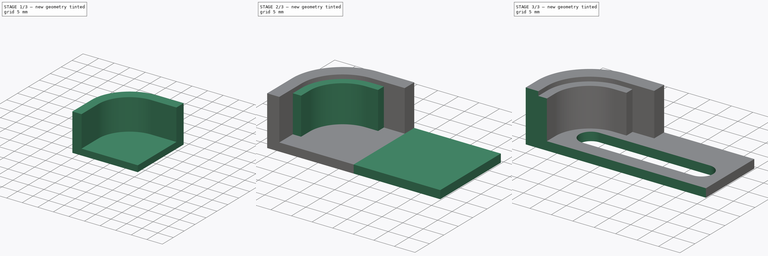
[diagram: build sequence overview — one tinted view per stage of 3, left to right]
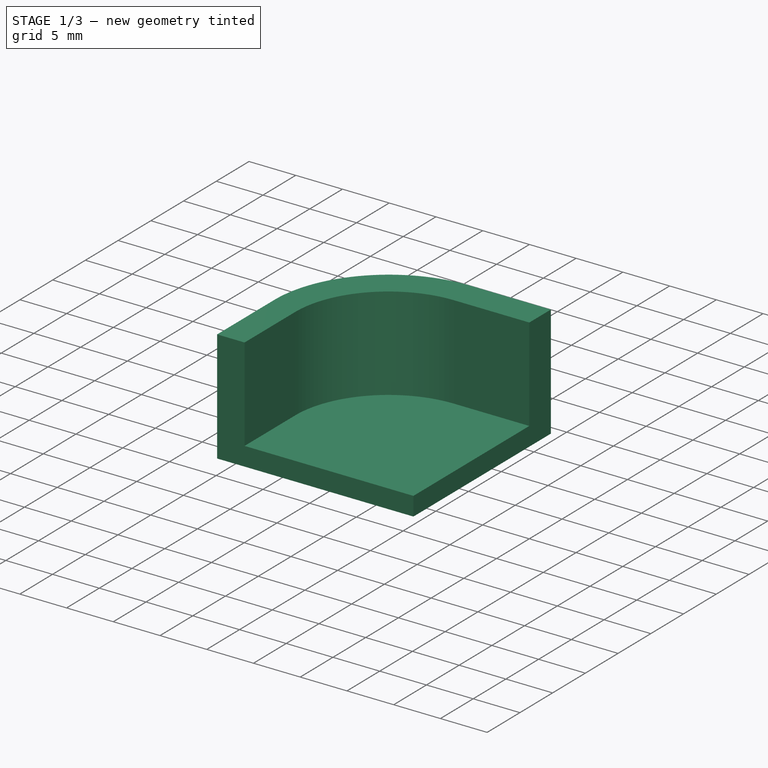
[diagram: stage 1 of 3 — iso view after this stage's code; geometry added in this stage tinted green]
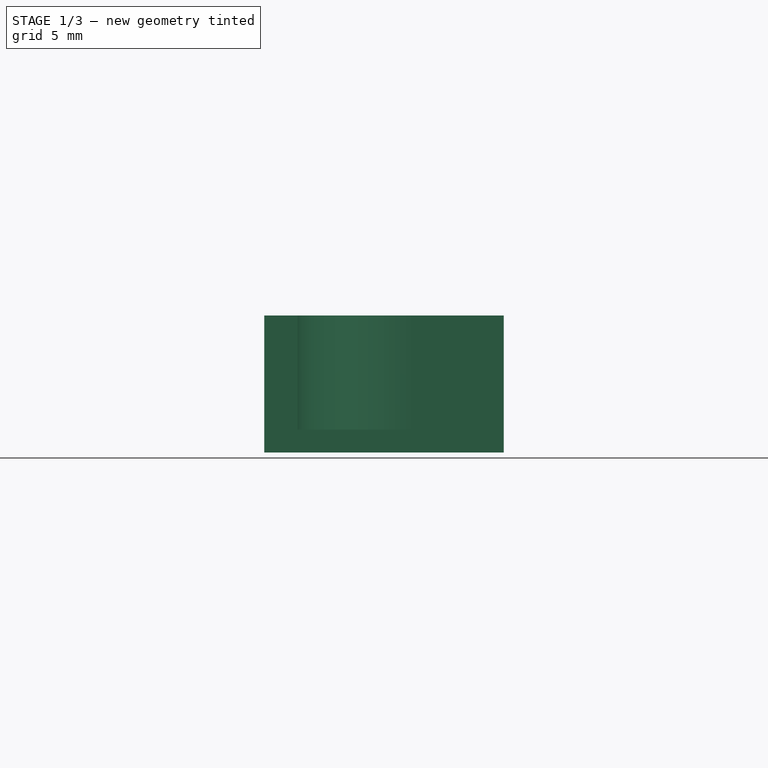
[diagram: stage 1 of 3 — front view after this stage's code; geometry added in this stage tinted green]
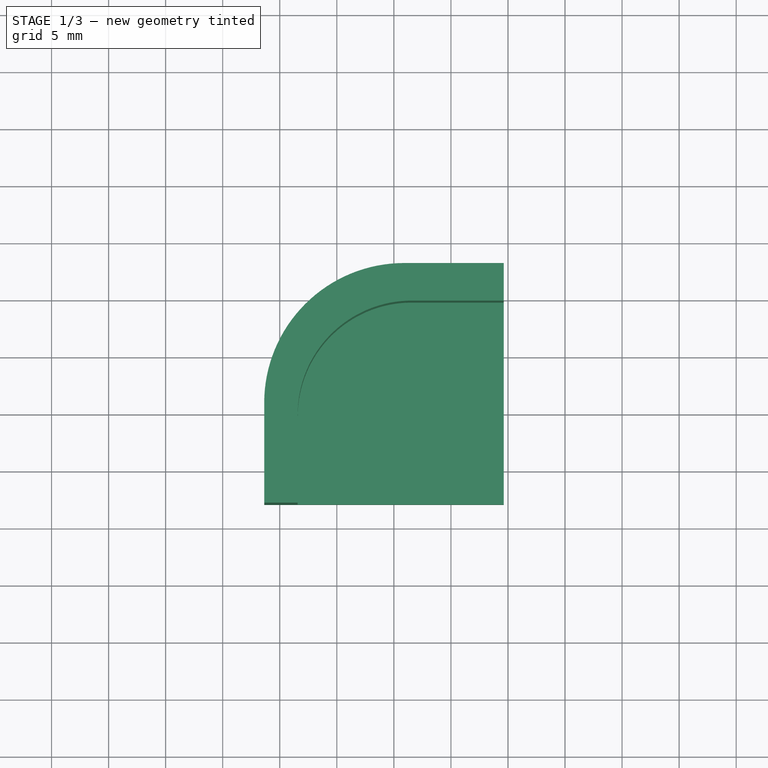
[diagram: stage 1 of 3 — top view after this stage's code; geometry added in this stage tinted green]
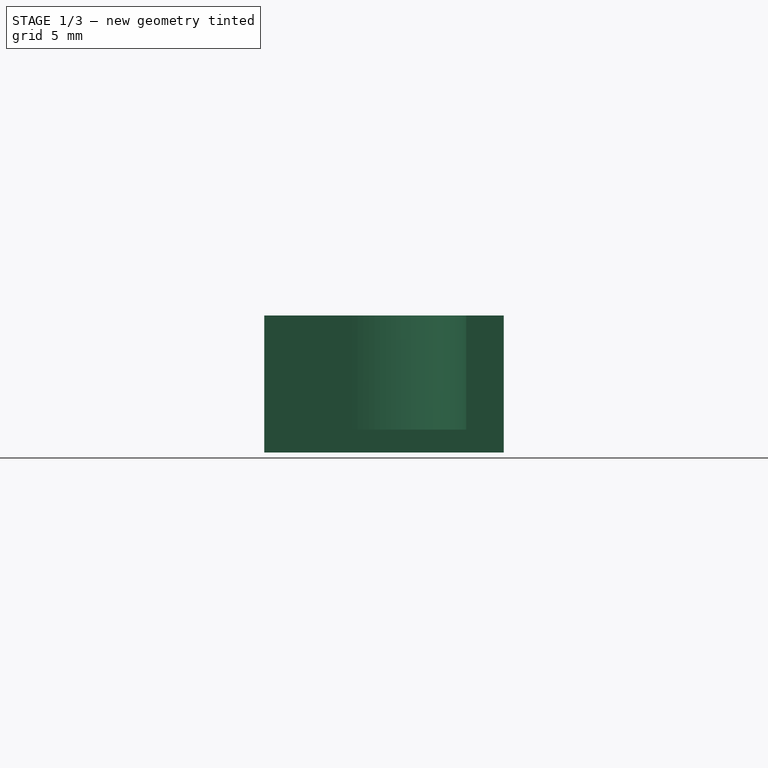
[diagram: stage 1 of 3 — right view after this stage's code; geometry added in this stage tinted green]
FCSTD DOCUMENT  (FreeCAD 0.21R33771 (Git))
Label: PanelHolder
License: All rights reserved
LicenseURL: http://en.wikipedia.org/wiki/All_rights_reserved
objects: Sketcher::SketchObject×6, App::Part×4, PartDesign::Pad×3, PartDesign::Pocket×2, PartDesign::CoordinateSystem×1, Part::Feature×1, PartDesign::ShapeBinder×1, PartDesign::SubtractiveBox×1, PartDesign::Body×1
note: 22 computed .brp shape members not serialized (recipe doc carries the construction recipe); baked Part::Feature solids carry a one-line shape summary decoded from their .brp

FEATURE [PartDesign::CoordinateSystem] Local_CS_514c
  AttacherType = Attacher::AttachEngine3D
  MapMode = 2
  Support = -> [X_Axis001]
FEATURE [Part::Feature] Pcb_514c
  shape: bbox 189.9 x 85.64 x 1.6 mm, 543 faces (baked)
FEATURE [Sketcher::SketchObject] PCB_Sketch_514c
  FullyConstrained = false
  sketch-geometry (504):
    g0: LineSegment StartX=150.224 StartY=-25.4 StartZ=0 EndX=158 EndY=-25.4 EndZ=0
    g1: LineSegment StartX=158 StartY=-25.4 StartZ=0 EndX=158.106 EndY=-25.403 EndZ=0
    g2: LineSegment StartX=158.106 StartY=-25.403 StartZ=0 EndX=158.21 EndY=-25.4113 EndZ=0
    g3: LineSegment StartX=158.21 StartY=-25.4113 StartZ=0 EndX=158.312 EndY=-25.4246 EndZ=0
    g4: LineSegment StartX=158.312 StartY=-25.4246 StartZ=0 EndX=158.413 EndY=-25.443 EndZ=0
    g5: LineSegment StartX=158.413 StartY=-25.443 StartZ=0 EndX=158.513 EndY=-25.4662 EndZ=0
    g6: LineSegment StartX=158.513 StartY=-25.4662 StartZ=0 EndX=158.61 EndY=-25.4941 EndZ=0
    g7: LineSegment StartX=158.61 StartY=-25.4941 StartZ=0 EndX=158.705 EndY=-25.5266 EndZ=0
    g8: LineSegment StartX=158.705 StartY=-25.5266 StartZ=0 EndX=158.798 EndY=-25.5636 EndZ=0
    g9: LineSegment StartX=158.798 StartY=-25.5636 StartZ=0 EndX=158.889 EndY=-25.6049 EndZ=0
    g10: LineSegment StartX=158.889 StartY=-25.6049 StartZ=0 EndX=158.978 EndY=-25.6505 EndZ=0
    g11: LineSegment StartX=158.978 StartY=-25.6505 StartZ=0 EndX=159.063 EndY=-25.7001 EndZ=0
    g12: LineSegment StartX=159.063 StartY=-25.7001 StartZ=0 EndX=159.147 EndY=-25.7536 EndZ=0
    g13: LineSegment StartX=159.147 StartY=-25.7536 StartZ=0 EndX=159.227 EndY=-25.811 EndZ=0
    g14: LineSegment StartX=159.227 StartY=-25.811 StartZ=0 EndX=159.304 EndY=-25.8721 EndZ=0
    g15: LineSegment StartX=159.304 StartY=-25.8721 StartZ=0 EndX=159.379 EndY=-25.9367 EndZ=0
    g16: LineSegment StartX=159.379 StartY=-25.9367 StartZ=0 EndX=159.45 EndY=-26.0048 EndZ=0
    g17: LineSegment StartX=159.45 StartY=-26.0048 StartZ=0 EndX=159.518 EndY=-26.0762 EndZ=0
    g18: LineSegment StartX=159.518 StartY=-26.0762 StartZ=0 EndX=159.582 EndY=-26.1508 EndZ=0
    g19: LineSegment StartX=159.582 StartY=-26.1508 StartZ=0 EndX=159.643 EndY=-26.2284 EndZ=0
    g20: LineSegment StartX=159.643 StartY=-26.2284 StartZ=0 EndX=159.7 EndY=-26.3089 EndZ=0
    g21: LineSegment StartX=159.7 StartY=-26.3089 StartZ=0 EndX=159.753 EndY=-26.3923 EndZ=0
    g22: LineSegment StartX=159.753 StartY=-26.3923 StartZ=0 EndX=159.803 EndY=-26.4783 EndZ=0
    g23: LineSegment StartX=159.803 StartY=-26.4783 StartZ=0 EndX=159.848 EndY=-26.5668 EndZ=0
    g24: LineSegment StartX=159.848 StartY=-26.5668 StartZ=0 EndX=159.889 EndY=-26.6578 EndZ=0
    g25: LineSegment StartX=159.889 StartY=-26.6578 StartZ=0 EndX=159.926 EndY=-26.751 EndZ=0
    g26: LineSegment StartX=159.926 StartY=-26.751 StartZ=0 EndX=159.958 EndY=-26.8464 EndZ=0
    g27: LineSegment StartX=159.958 StartY=-26.8464 StartZ=0 EndX=159.985 EndY=-26.9438 EndZ=0
    g28: LineSegment StartX=159.985 StartY=-26.9438 StartZ=0 EndX=160.008 EndY=-27.0431 EndZ=0
    g29: LineSegment StartX=160.008 StartY=-27.0431 StartZ=0 EndX=160.026 EndY=-27.1442 EndZ=0
    g30: LineSegment StartX=160.026 StartY=-27.1442 StartZ=0 EndX=160.039 EndY=-27.2469 EndZ=0
    g31: LineSegment StartX=160.039 StartY=-27.2469 StartZ=0 EndX=160.047 EndY=-27.3511 EndZ=0
    g32: LineSegment StartX=160.047 StartY=-27.3511 StartZ=0 EndX=160.05 EndY=-27.4567 EndZ=0
    g33: LineSegment StartX=160.05 StartY=-27.4567 StartZ=0 EndX=160.047 EndY=-27.5623 EndZ=0
    g34: LineSegment StartX=160.047 StartY=-27.5623 StartZ=0 EndX=160.039 EndY=-27.6665 EndZ=0
    g35: LineSegment StartX=160.039 StartY=-27.6665 StartZ=0 EndX=160.026 EndY=-27.7692 EndZ=0
    g36: LineSegment StartX=160.026 StartY=-27.7692 StartZ=0 EndX=160.008 EndY=-27.8702 EndZ=0
    g37: LineSegment StartX=160.008 StartY=-27.8702 StartZ=0 EndX=159.985 EndY=-27.9695 EndZ=0
    g38: LineSegment StartX=159.985 StartY=-27.9695 StartZ=0 EndX=159.958 EndY=-28.0669 EndZ=0
    g39: LineSegment StartX=159.958 StartY=-28.0669 StartZ=0 EndX=159.926 EndY=-28.1623 EndZ=0
    g40: LineSegment StartX=159.926 StartY=-28.1623 StartZ=0 EndX=159.889 EndY=-28.2555 EndZ=0
    g41: LineSegment StartX=159.889 StartY=-28.2555 StartZ=0 EndX=159.848 EndY=-28.3465 EndZ=0
    g42: LineSegment StartX=159.848 StartY=-28.3465 StartZ=0 EndX=159.803 EndY=-28.435 EndZ=0
    g43: LineSegment StartX=159.803 StartY=-28.435 StartZ=0 EndX=159.753 EndY=-28.521 EndZ=0
    g44: LineSegment StartX=159.753 StartY=-28.521 StartZ=0 EndX=159.7 EndY=-28.6044 EndZ=0
    g45: LineSegment StartX=159.7 StartY=-28.6044 StartZ=0 EndX=159.643 EndY=-28.6849 EndZ=0
    g46: LineSegment StartX=159.643 StartY=-28.6849 StartZ=0 EndX=159.582 EndY=-28.7625 EndZ=0
    g47: LineSegment StartX=159.582 StartY=-28.7625 StartZ=0 EndX=159.518 EndY=-28.8371 EndZ=0
    g48: LineSegment StartX=159.518 StartY=-28.8371 StartZ=0 EndX=159.45 EndY=-28.9085 EndZ=0
    g49: LineSegment StartX=159.45 StartY=-28.9085 StartZ=0 EndX=159.379 EndY=-28.9766 EndZ=0
    g50: LineSegment StartX=159.379 StartY=-28.9766 StartZ=0 EndX=159.304 EndY=-29.0412 EndZ=0
    g51: LineSegment StartX=159.304 StartY=-29.0412 StartZ=0 EndX=159.227 EndY=-29.1023 EndZ=0
    g52: LineSegment StartX=159.227 StartY=-29.1023 StartZ=0 EndX=159.147 EndY=-29.1597 EndZ=0
    g53: LineSegment StartX=159.147 StartY=-29.1597 StartZ=0 EndX=159.063 EndY=-29.2133 EndZ=0
    g54: LineSegment StartX=159.063 StartY=-29.2133 StartZ=0 EndX=158.978 EndY=-29.2629 EndZ=0
    g55: LineSegment StartX=158.978 StartY=-29.2629 StartZ=0 EndX=158.889 EndY=-29.3084 EndZ=0
    g56: LineSegment StartX=158.889 StartY=-29.3084 StartZ=0 EndX=158.798 EndY=-29.3497 EndZ=0
    g57: LineSegment StartX=158.798 StartY=-29.3497 StartZ=0 EndX=158.705 EndY=-29.3867 EndZ=0
    g58: LineSegment StartX=158.705 StartY=-29.3867 StartZ=0 EndX=158.61 EndY=-29.4192 EndZ=0
    g59: LineSegment StartX=158.61 StartY=-29.4192 StartZ=0 EndX=158.513 EndY=-29.4471 EndZ=0
    g60: LineSegment StartX=158.513 StartY=-29.4471 StartZ=0 EndX=158.413 EndY=-29.4703 EndZ=0
    g61: LineSegment StartX=158.413 StartY=-29.4703 StartZ=0 EndX=158.312 EndY=-29.4887 EndZ=0
    g62: LineSegment StartX=158.312 StartY=-29.4887 StartZ=0 EndX=158.21 EndY=-29.5021 EndZ=0
    g63: LineSegment StartX=158.21 StartY=-29.5021 StartZ=0 EndX=158.106 EndY=-29.5103 EndZ=0
    g64: LineSegment StartX=158.106 StartY=-29.5103 StartZ=0 EndX=158 EndY=-29.5133 EndZ=0
    g65: LineSegment StartX=158 StartY=-29.5133 StartZ=0 EndX=150.224 EndY=-29.5133 EndZ=0
    g66: LineSegment StartX=150.224 StartY=-29.5133 StartZ=0 EndX=150.119 EndY=-29.5102 EndZ=0
    g67: LineSegment StartX=150.119 StartY=-29.5102 StartZ=0 EndX=150.014 EndY=-29.5019 EndZ=0
    g68: LineSegment StartX=150.014 StartY=-29.5019 StartZ=0 EndX=149.912 EndY=-29.4884 EndZ=0
    g69: LineSegment StartX=149.912 StartY=-29.4884 StartZ=0 EndX=149.811 EndY=-29.47 EndZ=0
    g70: LineSegment StartX=149.811 StartY=-29.47 StartZ=0 EndX=149.712 EndY=-29.4468 EndZ=0
    g71: LineSegment StartX=149.712 StartY=-29.4468 StartZ=0 EndX=149.614 EndY=-29.4188 EndZ=0
    g72: LineSegment StartX=149.614 StartY=-29.4188 StartZ=0 EndX=149.519 EndY=-29.3863 EndZ=0
    g73: LineSegment StartX=149.519 StartY=-29.3863 StartZ=0 EndX=149.426 EndY=-29.3493 EndZ=0
    g74: LineSegment StartX=149.426 StartY=-29.3493 StartZ=0 EndX=149.335 EndY=-29.3079 EndZ=0
    g75: LineSegment StartX=149.335 StartY=-29.3079 StartZ=0 EndX=149.247 EndY=-29.2623 EndZ=0
    g76: LineSegment StartX=149.247 StartY=-29.2623 StartZ=0 EndX=149.161 EndY=-29.2127 EndZ=0
    g77: LineSegment StartX=149.161 StartY=-29.2127 StartZ=0 EndX=149.078 EndY=-29.1591 EndZ=0
    g78: LineSegment StartX=149.078 StartY=-29.1591 StartZ=0 EndX=148.998 EndY=-29.1017 EndZ=0
    g79: LineSegment StartX=148.998 StartY=-29.1017 StartZ=0 EndX=148.921 EndY=-29.0407 EndZ=0
    g80: LineSegment StartX=148.921 StartY=-29.0407 StartZ=0 EndX=148.846 EndY=-28.976 EndZ=0
    g81: LineSegment StartX=148.846 StartY=-28.976 StartZ=0 EndX=148.775 EndY=-28.9079 EndZ=0
    g82: LineSegment StartX=148.775 StartY=-28.9079 StartZ=0 EndX=148.707 EndY=-28.8366 EndZ=0
    g83: LineSegment StartX=148.707 StartY=-28.8366 StartZ=0 EndX=148.643 EndY=-28.762 EndZ=0
    g84: LineSegment StartX=148.643 StartY=-28.762 StartZ=0 EndX=148.582 EndY=-28.6844 EndZ=0
    g85: LineSegment StartX=148.582 StartY=-28.6844 StartZ=0 EndX=148.525 EndY=-28.6039 EndZ=0
    g86: LineSegment StartX=148.525 StartY=-28.6039 StartZ=0 EndX=148.472 EndY=-28.5205 EndZ=0
    g87: LineSegment StartX=148.472 StartY=-28.5205 StartZ=0 EndX=148.423 EndY=-28.4346 EndZ=0
    g88: LineSegment StartX=148.423 StartY=-28.4346 StartZ=0 EndX=148.378 EndY=-28.3461 EndZ=0
    g89: LineSegment StartX=148.378 StartY=-28.3461 StartZ=0 EndX=148.337 EndY=-28.2551 EndZ=0
    g90: LineSegment StartX=148.337 StartY=-28.2551 StartZ=0 EndX=148.3 EndY=-28.1619 EndZ=0
    g91: LineSegment StartX=148.3 StartY=-28.1619 StartZ=0 EndX=148.268 EndY=-28.0666 EndZ=0
    g92: LineSegment StartX=148.268 StartY=-28.0666 StartZ=0 EndX=148.24 EndY=-27.9692 EndZ=0
    g93: LineSegment StartX=148.24 StartY=-27.9692 StartZ=0 EndX=148.217 EndY=-27.87 EndZ=0
    g94: LineSegment StartX=148.217 StartY=-27.87 StartZ=0 EndX=148.199 EndY=-27.769 EndZ=0
    g95: LineSegment StartX=148.199 StartY=-27.769 StartZ=0 EndX=148.186 EndY=-27.6663 EndZ=0
    g96: LineSegment StartX=148.186 StartY=-27.6663 StartZ=0 EndX=148.179 EndY=-27.5622 EndZ=0
    g97: LineSegment StartX=148.179 StartY=-27.5622 StartZ=0 EndX=148.176 EndY=-27.4566 EndZ=0
    g98: LineSegment StartX=148.176 StartY=-27.4566 StartZ=0 EndX=148.179 EndY=-27.3511 EndZ=0
    g99: LineSegment StartX=148.179 StartY=-27.3511 StartZ=0 EndX=148.186 EndY=-27.247 EndZ=0
    g100: LineSegment StartX=148.186 StartY=-27.247 StartZ=0 EndX=148.199 EndY=-27.1443 EndZ=0
    g101: LineSegment StartX=148.199 StartY=-27.1443 StartZ=0 EndX=148.217 EndY=-27.0433 EndZ=0
    g102: LineSegment StartX=148.217 StartY=-27.0433 StartZ=0 EndX=148.24 EndY=-26.944 EndZ=0
    g103: LineSegment StartX=148.24 StartY=-26.944 StartZ=0 EndX=148.268 EndY=-26.8467 EndZ=0
    g104: LineSegment StartX=148.268 StartY=-26.8467 StartZ=0 EndX=148.3 EndY=-26.7513 EndZ=0
    g105: LineSegment StartX=148.3 StartY=-26.7513 StartZ=0 EndX=148.337 EndY=-26.6581 EndZ=0
    g106: LineSegment StartX=148.337 StartY=-26.6581 StartZ=0 EndX=148.378 EndY=-26.5672 EndZ=0
    g107: LineSegment StartX=148.378 StartY=-26.5672 StartZ=0 EndX=148.423 EndY=-26.4787 EndZ=0
    g108: LineSegment StartX=148.423 StartY=-26.4787 StartZ=0 EndX=148.472 EndY=-26.3927 EndZ=0
    g109: LineSegment StartX=148.472 StartY=-26.3927 StartZ=0 EndX=148.525 EndY=-26.3094 EndZ=0
    g110: LineSegment StartX=148.525 StartY=-26.3094 StartZ=0 EndX=148.582 EndY=-26.2289 EndZ=0
    g111: LineSegment StartX=148.582 StartY=-26.2289 StartZ=0 EndX=148.643 EndY=-26.1513 EndZ=0
    g112: LineSegment StartX=148.643 StartY=-26.1513 StartZ=0 EndX=148.707 EndY=-26.0767 EndZ=0
    g113: LineSegment StartX=148.707 StartY=-26.0767 StartZ=0 EndX=148.775 EndY=-26.0053 EndZ=0
    g114: LineSegment StartX=148.775 StartY=-26.0053 StartZ=0 EndX=148.846 EndY=-25.9373 EndZ=0
    g115: LineSegment StartX=148.846 StartY=-25.9373 StartZ=0 EndX=148.921 EndY=-25.8726 EndZ=0
    g116: LineSegment StartX=148.921 StartY=-25.8726 StartZ=0 EndX=148.998 EndY=-25.8115 EndZ=0
    g117: LineSegment StartX=148.998 StartY=-25.8115 StartZ=0 EndX=149.078 EndY=-25.7541 EndZ=0
    g118: LineSegment StartX=149.078 StartY=-25.7541 StartZ=0 EndX=149.161 EndY=-25.7006 EndZ=0
    g119: LineSegment StartX=149.161 StartY=-25.7006 StartZ=0 EndX=149.247 EndY=-25.6509 EndZ=0
    g120: LineSegment StartX=149.247 StartY=-25.6509 StartZ=0 EndX=149.335 EndY=-25.6054 EndZ=0
    g121: LineSegment StartX=149.335 StartY=-25.6054 StartZ=0 EndX=149.426 EndY=-25.564 EndZ=0
    g122: LineSegment StartX=149.426 StartY=-25.564 StartZ=0 EndX=149.519 EndY=-25.527 EndZ=0
    g123: LineSegment StartX=149.519 StartY=-25.527 StartZ=0 EndX=149.614 EndY=-25.4945 EndZ=0
    g124: LineSegment StartX=149.614 StartY=-25.4945 StartZ=0 EndX=149.712 EndY=-25.4665 EndZ=0
    g125: LineSegment StartX=149.712 StartY=-25.4665 StartZ=0 EndX=149.811 EndY=-25.4432 EndZ=0
    g126: LineSegment StartX=149.811 StartY=-25.4432 StartZ=0 EndX=149.912 EndY=-25.4248 EndZ=0
    g127: LineSegment StartX=149.912 StartY=-25.4248 StartZ=0 EndX=150.014 EndY=-25.4114 EndZ=0
    g128: LineSegment StartX=150.014 StartY=-25.4114 StartZ=0 EndX=150.119 EndY=-25.4031 EndZ=0
    g129: LineSegment StartX=150.119 StartY=-25.4031 StartZ=0 EndX=150.224 EndY=-25.4 EndZ=0
    g130: LineSegment StartX=188.25 StartY=-23.4173 StartZ=0 EndX=200.25 EndY=-26.9154 EndZ=0
    g131: LineSegment StartX=200.25 StartY=-26.9154 StartZ=0 EndX=200.25 EndY=-30.1929 EndZ=0
    g132: LineSegment StartX=200.25 StartY=-30.1929 StartZ=0 EndX=230.25 EndY=-30.1929 EndZ=0
    g133: LineSegment StartX=230.25 StartY=-30.1929 StartZ=0 EndX=230.746 EndY=-30.2052 EndZ=0
    g134: LineSegment StartX=230.746 StartY=-30.2052 StartZ=0 EndX=231.238 EndY=-30.2418 EndZ=0
    g135: LineSegment StartX=231.238 StartY=-30.2418 StartZ=0 EndX=231.726 EndY=-30.3025 EndZ=0
    g136: LineSegment StartX=231.726 StartY=-30.3025 StartZ=0 EndX=232.21 EndY=-30.3868 EndZ=0
    g137: LineSegment StartX=232.21 StartY=-30.3868 StartZ=0 EndX=232.687 EndY=-30.4945 EndZ=0
    g138: LineSegment StartX=232.687 StartY=-30.4945 StartZ=0 EndX=233.158 EndY=-30.6251 EndZ=0
    g139: LineSegment StartX=233.158 StartY=-30.6251 StartZ=0 EndX=233.621 EndY=-30.7784 EndZ=0
    g140: LineSegment StartX=233.621 StartY=-30.7784 StartZ=0 EndX=234.077 EndY=-30.9541 EndZ=0
    g141: LineSegment StartX=234.077 StartY=-30.9541 StartZ=0 EndX=234.523 EndY=-31.1517 EndZ=0
    g142: LineSegment StartX=234.523 StartY=-31.1517 StartZ=0 EndX=234.959 EndY=-31.3709 EndZ=0
    g143: LineSegment StartX=234.959 StartY=-31.3709 StartZ=0 EndX=235.384 EndY=-31.6115 EndZ=0
    g144: LineSegment StartX=235.384 StartY=-31.6115 StartZ=0 EndX=235.798 EndY=-31.873 EndZ=0
    g145: LineSegment StartX=235.798 StartY=-31.873 StartZ=0 EndX=236.199 EndY=-32.1551 EndZ=0
    g146: LineSegment StartX=236.199 StartY=-32.1551 StartZ=0 EndX=236.587 EndY=-32.4575 EndZ=0
    g147: LineSegment StartX=236.587 StartY=-32.4575 StartZ=0 EndX=236.961 EndY=-32.7799 EndZ=0
    g148: LineSegment StartX=236.961 StartY=-32.7799 StartZ=0 EndX=237.321 EndY=-33.1218 EndZ=0
    g149: LineSegment StartX=237.321 StartY=-33.1218 StartZ=0 EndX=237.663 EndY=-33.4811 EndZ=0
    g150: LineSegment StartX=237.663 StartY=-33.4811 StartZ=0 EndX=237.985 EndY=-33.8553 EndZ=0
    g151: LineSegment StartX=237.985 StartY=-33.8553 StartZ=0 EndX=238.287 EndY=-34.2435 EndZ=0
    g152: LineSegment StartX=238.287 StartY=-34.2435 StartZ=0 EndX=238.57 EndY=-34.6449 EndZ=0
    g153: LineSegment StartX=238.57 StartY=-34.6449 StartZ=0 EndX=238.831 EndY=-35.0587 EndZ=0
    g154: LineSegment StartX=238.831 StartY=-35.0587 StartZ=0 EndX=239.072 EndY=-35.484 EndZ=0
    g155: LineSegment StartX=239.072 StartY=-35.484 StartZ=0 EndX=239.291 EndY=-35.9201 EndZ=0
    g156: LineSegment StartX=239.291 StartY=-35.9201 StartZ=0 EndX=239.488 EndY=-36.3661 EndZ=0
    g157: LineSegment StartX=239.488 StartY=-36.3661 StartZ=0 EndX=239.664 EndY=-36.8212 EndZ=0
    g158: LineSegment StartX=239.664 StartY=-36.8212 StartZ=0 EndX=239.817 EndY=-37.2845 EndZ=0
    g159: LineSegment StartX=239.817 StartY=-37.2845 StartZ=0 EndX=239.948 EndY=-37.7554 EndZ=0
    g160: LineSegment StartX=239.948 StartY=-37.7554 StartZ=0 EndX=240.056 EndY=-38.2329 EndZ=0
    g161: LineSegment StartX=240.056 StartY=-38.2329 StartZ=0 EndX=240.14 EndY=-38.7162 EndZ=0
    g162: LineSegment StartX=240.14 StartY=-38.7162 StartZ=0 EndX=240.201 EndY=-39.2045 EndZ=0
    g163: LineSegment StartX=240.201 StartY=-39.2045 StartZ=0 EndX=240.237 EndY=-39.697 EndZ=0
    g164: LineSegment StartX=240.237 StartY=-39.697 StartZ=0 EndX=240.25 EndY=-40.1929 EndZ=0
    g165: LineSegment StartX=240.25 StartY=-40.1929 StartZ=0 EndX=240.25 EndY=-71.7127 EndZ=0
    g166: LineSegment StartX=240.25 StartY=-71.7127 StartZ=0 EndX=240.251 EndY=-71.7971 EndZ=0
    g167: LineSegment StartX=240.251 StartY=-71.7971 StartZ=0 EndX=240.255 EndY=-71.8813 EndZ=0
    g168: LineSegment StartX=240.255 StartY=-71.8813 StartZ=0 EndX=240.262 EndY=-71.9651 EndZ=0
    g169: LineSegment StartX=240.262 StartY=-71.9651 StartZ=0 EndX=240.272 EndY=-72.0485 EndZ=0
    g170: LineSegment StartX=240.272 StartY=-72.0485 StartZ=0 EndX=240.285 EndY=-72.1315 EndZ=0
    g171: LineSegment StartX=240.285 StartY=-72.1315 StartZ=0 EndX=240.3 EndY=-72.2139 EndZ=0
    g172: LineSegment StartX=240.3 StartY=-72.2139 StartZ=0 EndX=240.319 EndY=-72.2957 EndZ=0
    g173: LineSegment StartX=240.319 StartY=-72.2957 StartZ=0 EndX=240.339 EndY=-72.3769 EndZ=0
    g174: LineSegment StartX=240.339 StartY=-72.3769 StartZ=0 EndX=240.363 EndY=-72.4573 EndZ=0
    g175: LineSegment StartX=240.363 StartY=-72.4573 StartZ=0 EndX=240.389 EndY=-72.5368 EndZ=0
    g176: LineSegment StartX=240.389 StartY=-72.5368 StartZ=0 EndX=240.418 EndY=-72.6155 EndZ=0
    g177: LineSegment StartX=240.418 StartY=-72.6155 StartZ=0 EndX=240.45 EndY=-72.6933 EndZ=0
    g178: LineSegment StartX=240.45 StartY=-72.6933 StartZ=0 EndX=240.484 EndY=-72.77 EndZ=0
    g179: LineSegment StartX=240.484 StartY=-72.77 StartZ=0 EndX=240.521 EndY=-72.8456 EndZ=0
    g180: LineSegment StartX=240.521 StartY=-72.8456 StartZ=0 EndX=240.561 EndY=-72.9201 EndZ=0
    g181: LineSegment StartX=240.561 StartY=-72.9201 StartZ=0 EndX=240.603 EndY=-72.9933 EndZ=0
    g182: LineSegment StartX=240.603 StartY=-72.9933 StartZ=0 EndX=252.778 EndY=-93.4073 EndZ=0
    g183: LineSegment StartX=252.778 StartY=-93.4073 StartZ=0 EndX=252.877 EndY=-93.5819 EndZ=0
    g184: LineSegment StartX=252.877 StartY=-93.5819 StartZ=0 EndX=252.965 EndY=-93.7593 EndZ=0
    g185: LineSegment StartX=252.965 StartY=-93.7593 StartZ=0 EndX=253.045 EndY=-93.9392 EndZ=0
    g186: LineSegment StartX=253.045 StartY=-93.9392 StartZ=0 EndX=253.114 EndY=-94.1214 EndZ=0
    g187: LineSegment StartX=253.114 StartY=-94.1214 StartZ=0 EndX=253.175 EndY=-94.3054 EndZ=0
    g188: LineSegment StartX=253.175 StartY=-94.3054 StartZ=0 EndX=253.226 EndY=-94.491 EndZ=0
    g189: LineSegment StartX=253.226 StartY=-94.491 StartZ=0 EndX=253.267 EndY=-94.6778 EndZ=0
    g190: LineSegment StartX=253.267 StartY=-94.6778 StartZ=0 EndX=253.3 EndY=-94.8655 EndZ=0
    g191: LineSegment StartX=253.3 StartY=-94.8655 StartZ=0 EndX=253.323 EndY=-95.0538 EndZ=0
    g192: LineSegment StartX=253.323 StartY=-95.0538 StartZ=0 EndX=253.338 EndY=-95.2424 EndZ=0
    g193: LineSegment StartX=253.338 StartY=-95.2424 StartZ=0 EndX=253.343 EndY=-95.4309 EndZ=0
    g194: LineSegment StartX=253.343 StartY=-95.4309 StartZ=0 EndX=253.34 EndY=-95.6191 EndZ=0
    g195: LineSegment StartX=253.34 StartY=-95.6191 StartZ=0 EndX=253.328 EndY=-95.8066 EndZ=0
    g196: LineSegment StartX=253.328 StartY=-95.8066 StartZ=0 EndX=253.307 EndY=-95.993 EndZ=0
    g197: LineSegment StartX=253.307 StartY=-95.993 StartZ=0 EndX=253.277 EndY=-96.1782 EndZ=0
    g198: LineSegment StartX=253.277 StartY=-96.1782 StartZ=0 EndX=253.239 EndY=-96.3617 EndZ=0
    g199: LineSegment StartX=253.239 StartY=-96.3617 StartZ=0 EndX=253.192 EndY=-96.5432 EndZ=0
    g200: LineSegment StartX=253.192 StartY=-96.5432 StartZ=0 EndX=253.137 EndY=-96.7224 EndZ=0
    g201: LineSegment StartX=253.137 StartY=-96.7224 StartZ=0 EndX=253.074 EndY=-96.8989 EndZ=0
    g202: LineSegment StartX=253.074 StartY=-96.8989 StartZ=0 EndX=253.002 EndY=-97.0726 EndZ=0
    g203: LineSegment StartX=253.002 StartY=-97.0726 StartZ=0 EndX=252.922 EndY=-97.243 EndZ=0
    g204: LineSegment StartX=252.922 StartY=-97.243 StartZ=0 EndX=252.834 EndY=-97.4098 EndZ=0
    g205: LineSegment StartX=252.834 StartY=-97.4098 StartZ=0 EndX=252.738 EndY=-97.5727 EndZ=0
    g206: LineSegment StartX=252.738 StartY=-97.5727 StartZ=0 EndX=252.634 EndY=-97.7314 EndZ=0
    g207: LineSegment StartX=252.634 StartY=-97.7314 StartZ=0 EndX=252.522 EndY=-97.8855 EndZ=0
    g208: LineSegment StartX=252.522 StartY=-97.8855 StartZ=0 EndX=252.402 EndY=-98.0347 EndZ=0
    g209: LineSegment StartX=252.402 StartY=-98.0347 StartZ=0 EndX=252.275 EndY=-98.1788 EndZ=0
    g210: LineSegment StartX=252.275 StartY=-98.1788 StartZ=0 EndX=252.139 EndY=-98.3174 EndZ=0
    g211: LineSegment StartX=252.139 StartY=-98.3174 StartZ=0 EndX=251.996 EndY=-98.4501 EndZ=0
    g212: LineSegment StartX=251.996 StartY=-98.4501 StartZ=0 EndX=251.846 EndY=-98.5767 EndZ=0
    g213: LineSegment StartX=251.846 StartY=-98.5767 StartZ=0 EndX=251.688 EndY=-98.6968 EndZ=0
    g214: LineSegment StartX=251.688 StartY=-98.6968 StartZ=0 EndX=251.523 EndY=-98.8101 EndZ=0
    g215: LineSegment StartX=251.523 StartY=-98.8101 StartZ=0 EndX=236.753 EndY=-108.411 EndZ=0
    g216: LineSegment StartX=236.753 StartY=-108.411 StartZ=0 EndX=236.517 EndY=-108.552 EndZ=0
    g217: LineSegment StartX=236.517 StartY=-108.552 StartZ=0 EndX=236.275 EndY=-108.677 EndZ=0
    g218: LineSegment StartX=236.275 StartY=-108.677 StartZ=0 EndX=236.027 EndY=-108.783 EndZ=0
    g219: LineSegment StartX=236.027 StartY=-108.783 StartZ=0 EndX=235.773 EndY=-108.873 EndZ=0
    g220: LineSegment StartX=235.773 StartY=-108.873 StartZ=0 EndX=235.515 EndY=-108.944 EndZ=0
    g221: LineSegment StartX=235.515 StartY=-108.944 StartZ=0 EndX=235.254 EndY=-108.999 EndZ=0
    g222: LineSegment StartX=235.254 StartY=-108.999 StartZ=0 EndX=234.99 EndY=-109.035 EndZ=0
    g223: LineSegment StartX=234.99 StartY=-109.035 StartZ=0 EndX=234.725 EndY=-109.054 EndZ=0
    g224: LineSegment StartX=234.725 StartY=-109.054 StartZ=0 EndX=234.459 EndY=-109.055 EndZ=0
    g225: LineSegment StartX=234.459 StartY=-109.055 StartZ=0 EndX=234.193 EndY=-109.039 EndZ=0
    g226: LineSegment StartX=234.193 StartY=-109.039 StartZ=0 EndX=233.928 EndY=-109.005 EndZ=0
    g227: LineSegment StartX=233.928 StartY=-109.005 StartZ=0 EndX=233.665 EndY=-108.953 EndZ=0
    g228: LineSegment StartX=233.665 StartY=-108.953 StartZ=0 EndX=233.406 EndY=-108.883 EndZ=0
    g229: LineSegment StartX=233.406 StartY=-108.883 StartZ=0 EndX=233.15 EndY=-108.795 EndZ=0
    g230: LineSegment StartX=233.15 StartY=-108.795 StartZ=0 EndX=232.899 EndY=-108.69 EndZ=0
    g231: LineSegment StartX=232.899 StartY=-108.69 StartZ=0 EndX=232.654 EndY=-108.567 EndZ=0
    g232: LineSegment StartX=232.654 StartY=-108.567 StartZ=0 EndX=216.148 EndY=-99.5417 EndZ=0
    g233: LineSegment StartX=216.148 StartY=-99.5417 StartZ=0 EndX=216.049 EndY=-99.4887 EndZ=0
    g234: LineSegment StartX=216.049 StartY=-99.4887 StartZ=0 EndX=215.948 EndY=-99.438 EndZ=0
    g235: LineSegment StartX=215.948 StartY=-99.438 StartZ=0 EndX=215.847 EndY=-99.3897 EndZ=0
    g236: LineSegment StartX=215.847 StartY=-99.3897 StartZ=0 EndX=215.744 EndY=-99.3436 EndZ=0
    g237: LineSegment StartX=215.744 StartY=-99.3436 StartZ=0 EndX=215.64 EndY=-99.2999 EndZ=0
    g238: LineSegment StartX=215.64 StartY=-99.2999 StartZ=0 EndX=215.536 EndY=-99.2586 EndZ=0
    g239: LineSegment StartX=215.536 StartY=-99.2586 StartZ=0 EndX=215.43 EndY=-99.2196 EndZ=0
    g240: LineSegment StartX=215.43 StartY=-99.2196 StartZ=0 EndX=215.324 EndY=-99.183 EndZ=0
    g241: LineSegment StartX=215.324 StartY=-99.183 StartZ=0 EndX=215.217 EndY=-99.1488 EndZ=0
    g242: LineSegment StartX=215.217 StartY=-99.1488 StartZ=0 EndX=215.109 EndY=-99.117 EndZ=0
    g243: LineSegment StartX=215.109 StartY=-99.117 StartZ=0 EndX=215 EndY=-99.0877 EndZ=0
    g244: LineSegment StartX=215 StartY=-99.0877 StartZ=0 EndX=214.891 EndY=-99.0608 EndZ=0
    g245: LineSegment StartX=214.891 StartY=-99.0608 StartZ=0 EndX=214.781 EndY=-99.0363 EndZ=0
    g246: LineSegment StartX=214.781 StartY=-99.0363 StartZ=0 EndX=214.671 EndY=-99.0143 EndZ=0
    g247: LineSegment StartX=214.671 StartY=-99.0143 StartZ=0 EndX=214.56 EndY=-98.9948 EndZ=0
    g248: LineSegment StartX=214.56 StartY=-98.9948 StartZ=0 EndX=214.448 EndY=-98.9778 EndZ=0
    g249: LineSegment StartX=214.448 StartY=-98.9778 StartZ=0 EndX=200.75 EndY=-97.0446 EndZ=0
    g250: LineSegment StartX=200.75 StartY=-97.0446 StartZ=0 EndX=200.731 EndY=-97.0446 EndZ=0
    g251: LineSegment StartX=200.731 StartY=-97.0446 StartZ=0 EndX=200.583 EndY=-97.0409 EndZ=0
    g252: LineSegment StartX=200.583 StartY=-97.0409 StartZ=0 EndX=200.435 EndY=-97.0299 EndZ=0
    g253: LineSegment StartX=200.435 StartY=-97.0299 StartZ=0 EndX=200.288 EndY=-97.0118 EndZ=0
    g254: LineSegment StartX=200.288 StartY=-97.0118 StartZ=0 EndX=200.143 EndY=-96.9865 EndZ=0
    g255: LineSegment StartX=200.143 StartY=-96.9865 StartZ=0 EndX=200 EndY=-96.9542 EndZ=0
    g256: LineSegment StartX=200 StartY=-96.9542 StartZ=0 EndX=199.859 EndY=-96.915 EndZ=0
    g257: LineSegment StartX=199.859 StartY=-96.915 StartZ=0 EndX=199.72 EndY=-96.869 EndZ=0
    g258: LineSegment StartX=199.72 StartY=-96.869 StartZ=0 EndX=199.583 EndY=-96.8163 EndZ=0
    g259: LineSegment StartX=199.583 StartY=-96.8163 StartZ=0 EndX=199.449 EndY=-96.757 EndZ=0
    g260: LineSegment StartX=199.449 StartY=-96.757 StartZ=0 EndX=199.319 EndY=-96.6912 EndZ=0
    g261: LineSegment StartX=199.319 StartY=-96.6912 StartZ=0 EndX=199.191 EndY=-96.619 EndZ=0
    g262: LineSegment StartX=199.191 StartY=-96.619 StartZ=0 EndX=199.067 EndY=-96.5406 EndZ=0
    g263: LineSegment StartX=199.067 StartY=-96.5406 StartZ=0 EndX=198.946 EndY=-96.456 EndZ=0
    g264: LineSegment StartX=198.946 StartY=-96.456 StartZ=0 EndX=198.83 EndY=-96.3652 EndZ=0
    g265: LineSegment StartX=198.83 StartY=-96.3652 StartZ=0 EndX=198.718 EndY=-96.2685 EndZ=0
    g266: LineSegment StartX=198.718 StartY=-96.2685 StartZ=0 EndX=198.61 EndY=-96.1659 EndZ=0
    g267: LineSegment StartX=198.61 StartY=-96.1659 StartZ=0 EndX=198.507 EndY=-96.0581 EndZ=0
    g268: LineSegment StartX=198.507 StartY=-96.0581 StartZ=0 EndX=198.411 EndY=-95.9459 EndZ=0
    g269: LineSegment StartX=198.411 StartY=-95.9459 StartZ=0 EndX=198.32 EndY=-95.8294 EndZ=0
    g270: LineSegment StartX=198.32 StartY=-95.8294 StartZ=0 EndX=198.235 EndY=-95.709 EndZ=0
    g271: LineSegment StartX=198.235 StartY=-95.709 StartZ=0 EndX=198.157 EndY=-95.5849 EndZ=0
    g272: LineSegment StartX=198.157 StartY=-95.5849 StartZ=0 EndX=198.085 EndY=-95.4573 EndZ=0
    g273: LineSegment StartX=198.085 StartY=-95.4573 StartZ=0 EndX=198.019 EndY=-95.3265 EndZ=0
    g274: LineSegment StartX=198.019 StartY=-95.3265 StartZ=0 EndX=197.96 EndY=-95.1927 EndZ=0
    g275: LineSegment StartX=197.96 StartY=-95.1927 StartZ=0 EndX=197.907 EndY=-95.0561 EndZ=0
    g276: LineSegment StartX=197.907 StartY=-95.0561 StartZ=0 EndX=197.861 EndY=-94.9171 EndZ=0
    g277: LineSegment StartX=197.861 StartY=-94.9171 StartZ=0 EndX=197.822 EndY=-94.7759 EndZ=0
    g278: LineSegment StartX=197.822 StartY=-94.7759 StartZ=0 EndX=197.789 EndY=-94.6326 EndZ=0
    g279: LineSegment StartX=197.789 StartY=-94.6326 StartZ=0 EndX=197.764 EndY=-94.4876 EndZ=0
    g280: LineSegment StartX=197.764 StartY=-94.4876 StartZ=0 EndX=197.746 EndY=-94.3411 EndZ=0
    g281: LineSegment StartX=197.746 StartY=-94.3411 StartZ=0 EndX=197.735 EndY=-94.1934 EndZ=0
    g282: LineSegment StartX=197.735 StartY=-94.1934 StartZ=0 EndX=197.731 EndY=-94.0446 EndZ=0
    g283: LineSegment StartX=197.731 StartY=-94.0446 StartZ=0 EndX=197.731 EndY=-92.8765 EndZ=0
    g284: LineSegment StartX=197.731 StartY=-92.8765 StartZ=0 EndX=197.73 EndY=-92.8269 EndZ=0
    g285: LineSegment StartX=197.73 StartY=-92.8269 StartZ=0 EndX=197.726 EndY=-92.7777 EndZ=0
    g286: LineSegment StartX=197.726 StartY=-92.7777 StartZ=0 EndX=197.72 EndY=-92.7288 EndZ=0
    g287: LineSegment StartX=197.72 StartY=-92.7288 StartZ=0 EndX=197.712 EndY=-92.6805 EndZ=0
    g288: LineSegment StartX=197.712 StartY=-92.6805 StartZ=0 EndX=197.701 EndY=-92.6328 EndZ=0
    g289: LineSegment StartX=197.701 StartY=-92.6328 StartZ=0 EndX=197.688 EndY=-92.5857 EndZ=0
    g290: LineSegment StartX=197.688 StartY=-92.5857 StartZ=0 EndX=197.673 EndY=-92.5393 EndZ=0
    g291: LineSegment StartX=197.673 StartY=-92.5393 StartZ=0 EndX=197.655 EndY=-92.4938 EndZ=0
    g292: LineSegment StartX=197.655 StartY=-92.4938 StartZ=0 EndX=197.635 EndY=-92.4492 EndZ=0
    g293: LineSegment StartX=197.635 StartY=-92.4492 StartZ=0 EndX=197.613 EndY=-92.4056 EndZ=0
    g294: LineSegment StartX=197.613 StartY=-92.4056 StartZ=0 EndX=197.589 EndY=-92.3631 EndZ=0
    g295: LineSegment StartX=197.589 StartY=-92.3631 StartZ=0 EndX=197.563 EndY=-92.3217 EndZ=0
    g296: LineSegment StartX=197.563 StartY=-92.3217 StartZ=0 EndX=197.535 EndY=-92.2815 EndZ=0
    g297: LineSegment StartX=197.535 StartY=-92.2815 StartZ=0 EndX=197.505 EndY=-92.2427 EndZ=0
    g298: LineSegment StartX=197.505 StartY=-92.2427 StartZ=0 EndX=197.473 EndY=-92.2053 EndZ=0
    g299: LineSegment StartX=197.473 StartY=-92.2053 StartZ=0 EndX=197.438 EndY=-92.1694 EndZ=0
    g300: LineSegment StartX=197.438 StartY=-92.1694 StartZ=0 EndX=197.402 EndY=-92.1352 EndZ=0
    g301: LineSegment StartX=197.402 StartY=-92.1352 StartZ=0 EndX=197.365 EndY=-92.1029 EndZ=0
    g302: LineSegment StartX=197.365 StartY=-92.1029 StartZ=0 EndX=197.326 EndY=-92.0727 EndZ=0
    g303: LineSegment StartX=197.326 StartY=-92.0727 StartZ=0 EndX=197.286 EndY=-92.0445 EndZ=0
    g304: LineSegment StartX=197.286 StartY=-92.0445 StartZ=0 EndX=197.245 EndY=-92.0183 EndZ=0
    g305: LineSegment StartX=197.245 StartY=-92.0183 StartZ=0 EndX=197.202 EndY=-91.9943 EndZ=0
    g306: LineSegment StartX=197.202 StartY=-91.9943 StartZ=0 EndX=197.159 EndY=-91.9724 EndZ=0
    g307: LineSegment StartX=197.159 StartY=-91.9724 StartZ=0 EndX=197.114 EndY=-91.9526 EndZ=0
    g308: LineSegment StartX=197.114 StartY=-91.9526 StartZ=0 EndX=197.068 EndY=-91.935 EndZ=0
    g309: LineSegment StartX=197.068 StartY=-91.935 StartZ=0 EndX=197.022 EndY=-91.9197 EndZ=0
    g310: LineSegment StartX=197.022 StartY=-91.9197 StartZ=0 EndX=196.975 EndY=-91.9066 EndZ=0
    g311: LineSegment StartX=196.975 StartY=-91.9066 StartZ=0 EndX=196.927 EndY=-91.8959 EndZ=0
    g312: LineSegment StartX=196.927 StartY=-91.8959 StartZ=0 EndX=196.879 EndY=-91.8874 EndZ=0
    g313: LineSegment StartX=196.879 StartY=-91.8874 StartZ=0 EndX=196.83 EndY=-91.8814 EndZ=0
    g314: LineSegment StartX=196.83 StartY=-91.8814 StartZ=0 EndX=196.781 EndY=-91.8777 EndZ=0
    g315: LineSegment StartX=196.781 StartY=-91.8777 StartZ=0 EndX=196.731 EndY=-91.8765 EndZ=0
    g316: LineSegment StartX=196.731 StartY=-91.8765 StartZ=0 EndX=186.567 EndY=-91.8765 EndZ=0
    g317: LineSegment StartX=186.567 StartY=-91.8765 StartZ=0 EndX=186.516 EndY=-91.8778 EndZ=0
    g318: LineSegment StartX=186.516 StartY=-91.8778 StartZ=0 EndX=186.465 EndY=-91.8817 EndZ=0
    g319: LineSegment StartX=186.465 StartY=-91.8817 StartZ=0 EndX=186.415 EndY=-91.8881 EndZ=0
    g320: LineSegment StartX=186.415 StartY=-91.8881 StartZ=0 EndX=186.366 EndY=-91.8969 EndZ=0
    g321: LineSegment StartX=186.366 StartY=-91.8969 StartZ=0 EndX=186.318 EndY=-91.908 EndZ=0
    g322: LineSegment StartX=186.318 StartY=-91.908 StartZ=0 EndX=186.27 EndY=-91.9215 EndZ=0
    g323: LineSegment StartX=186.27 StartY=-91.9215 StartZ=0 EndX=186.224 EndY=-91.9372 EndZ=0
    g324: LineSegment StartX=186.224 StartY=-91.9372 StartZ=0 EndX=186.178 EndY=-91.9551 EndZ=0
    g325: LineSegment StartX=186.178 StartY=-91.9551 StartZ=0 EndX=186.134 EndY=-91.9752 EndZ=0
    g326: LineSegment StartX=186.134 StartY=-91.9752 StartZ=0 EndX=186.091 EndY=-91.9972 EndZ=0
    g327: LineSegment StartX=186.091 StartY=-91.9972 StartZ=0 EndX=186.049 EndY=-92.0213 EndZ=0
    g328: LineSegment StartX=186.049 StartY=-92.0213 StartZ=0 EndX=186.008 EndY=-92.0473 EndZ=0
    g329: LineSegment StartX=186.008 StartY=-92.0473 StartZ=0 EndX=185.969 EndY=-92.0752 EndZ=0
    g330: LineSegment StartX=185.969 StartY=-92.0752 StartZ=0 EndX=185.931 EndY=-92.1049 EndZ=0
    g331: LineSegment StartX=185.931 StartY=-92.1049 StartZ=0 EndX=185.895 EndY=-92.1363 EndZ=0
    g332: LineSegment StartX=185.895 StartY=-92.1363 StartZ=0 EndX=185.86 EndY=-92.1694 EndZ=0
    g333: LineSegment StartX=185.86 StartY=-92.1694 StartZ=0 EndX=185.827 EndY=-92.2042 EndZ=0
    g334: LineSegment StartX=185.827 StartY=-92.2042 StartZ=0 EndX=185.796 EndY=-92.2404 EndZ=0
    g335: LineSegment StartX=185.796 StartY=-92.2404 StartZ=0 EndX=185.766 EndY=-92.2782 EndZ=0
    g336: LineSegment StartX=185.766 StartY=-92.2782 StartZ=0 EndX=185.738 EndY=-92.3174 EndZ=0
    g337: LineSegment StartX=185.738 StartY=-92.3174 StartZ=0 EndX=185.712 EndY=-92.358 EndZ=0
    g338: LineSegment StartX=185.712 StartY=-92.358 StartZ=0 EndX=185.688 EndY=-92.3999 EndZ=0
    g339: LineSegment StartX=185.688 StartY=-92.3999 StartZ=0 EndX=185.666 EndY=-92.443 EndZ=0
    g340: LineSegment StartX=185.666 StartY=-92.443 StartZ=0 EndX=185.646 EndY=-92.4873 EndZ=0
    g341: LineSegment StartX=185.646 StartY=-92.4873 StartZ=0 EndX=185.628 EndY=-92.5327 EndZ=0
    g342: LineSegment StartX=185.628 StartY=-92.5327 StartZ=0 EndX=185.612 EndY=-92.5791 EndZ=0
    g343: LineSegment StartX=185.612 StartY=-92.5791 StartZ=0 EndX=185.599 EndY=-92.6266 EndZ=0
    g344: LineSegment StartX=185.599 StartY=-92.6266 StartZ=0 EndX=185.588 EndY=-92.675 EndZ=0
    g345: LineSegment StartX=185.588 StartY=-92.675 StartZ=0 EndX=185.579 EndY=-92.7242 EndZ=0
    g346: LineSegment StartX=185.579 StartY=-92.7242 StartZ=0 EndX=185.573 EndY=-92.7743 EndZ=0
    g347: LineSegment StartX=185.573 StartY=-92.7743 StartZ=0 EndX=185.569 EndY=-92.825 EndZ=0
    g348: LineSegment StartX=185.569 StartY=-92.825 StartZ=0 EndX=185.567 EndY=-92.8765 EndZ=0
    g349: LineSegment StartX=185.567 StartY=-92.8765 StartZ=0 EndX=185.567 EndY=-94.0446 EndZ=0
    g350: LineSegment StartX=185.567 StartY=-94.0446 StartZ=0 EndX=185.564 EndY=-94.199 EndZ=0
    g351: LineSegment StartX=185.564 StartY=-94.199 StartZ=0 EndX=185.552 EndY=-94.3514 EndZ=0
    g352: LineSegment StartX=185.552 StartY=-94.3514 StartZ=0 EndX=185.533 EndY=-94.5015 EndZ=0
    g353: LineSegment StartX=185.533 StartY=-94.5015 StartZ=0 EndX=185.506 EndY=-94.6492 EndZ=0
    g354: LineSegment StartX=185.506 StartY=-94.6492 StartZ=0 EndX=185.473 EndY=-94.7944 EndZ=0
    g355: LineSegment StartX=185.473 StartY=-94.7944 StartZ=0 EndX=185.433 EndY=-94.9367 EndZ=0
    g356: LineSegment StartX=185.433 StartY=-94.9367 StartZ=0 EndX=185.385 EndY=-95.0761 EndZ=0
    g357: LineSegment StartX=185.385 StartY=-95.0761 StartZ=0 EndX=185.332 EndY=-95.2123 EndZ=0
    g358: LineSegment StartX=185.332 StartY=-95.2123 StartZ=0 EndX=185.272 EndY=-95.3452 EndZ=0
    g359: LineSegment StartX=185.272 StartY=-95.3452 StartZ=0 EndX=185.205 EndY=-95.4746 EndZ=0
    g360: LineSegment StartX=185.205 StartY=-95.4746 StartZ=0 EndX=185.133 EndY=-95.6002 EndZ=0
    g361: LineSegment StartX=185.133 StartY=-95.6002 StartZ=0 EndX=185.055 EndY=-95.7219 EndZ=0
    g362: LineSegment StartX=185.055 StartY=-95.7219 StartZ=0 EndX=184.971 EndY=-95.8395 EndZ=0
    g363: LineSegment StartX=184.971 StartY=-95.8395 StartZ=0 EndX=184.882 EndY=-95.9529 EndZ=0
    g364: LineSegment StartX=184.882 StartY=-95.9529 StartZ=0 EndX=184.788 EndY=-96.0617 EndZ=0
    g365: LineSegment StartX=184.788 StartY=-96.0617 StartZ=0 EndX=184.689 EndY=-96.1659 EndZ=0
    g366: LineSegment StartX=184.689 StartY=-96.1659 StartZ=0 EndX=184.585 EndY=-96.2652 EndZ=0
    g367: LineSegment StartX=184.585 StartY=-96.2652 StartZ=0 EndX=184.476 EndY=-96.3595 EndZ=0
    g368: LineSegment StartX=184.476 StartY=-96.3595 StartZ=0 EndX=184.362 EndY=-96.4486 EndZ=0
    g369: LineSegment StartX=184.362 StartY=-96.4486 StartZ=0 EndX=184.245 EndY=-96.5322 EndZ=0
    g370: LineSegment StartX=184.245 StartY=-96.5322 StartZ=0 EndX=184.123 EndY=-96.6103 EndZ=0
    g371: LineSegment StartX=184.123 StartY=-96.6103 StartZ=0 EndX=183.997 EndY=-96.6825 EndZ=0
    g372: LineSegment StartX=183.997 StartY=-96.6825 StartZ=0 EndX=183.868 EndY=-96.7488 EndZ=0
    g373: LineSegment StartX=183.868 StartY=-96.7488 StartZ=0 EndX=183.735 EndY=-96.8088 EndZ=0
    g374: LineSegment StartX=183.735 StartY=-96.8088 StartZ=0 EndX=183.599 EndY=-96.8625 EndZ=0
    g375: LineSegment StartX=183.599 StartY=-96.8625 StartZ=0 EndX=183.46 EndY=-96.9097 EndZ=0
    g376: LineSegment StartX=183.46 StartY=-96.9097 StartZ=0 EndX=183.317 EndY=-96.9501 EndZ=0
    g377: LineSegment StartX=183.317 StartY=-96.9501 StartZ=0 EndX=183.172 EndY=-96.9836 EndZ=0
    g378: LineSegment StartX=183.172 StartY=-96.9836 StartZ=0 EndX=183.024 EndY=-97.01 EndZ=0
    g379: LineSegment StartX=183.024 StartY=-97.01 StartZ=0 EndX=182.874 EndY=-97.0291 EndZ=0
    g380: LineSegment StartX=182.874 StartY=-97.0291 StartZ=0 EndX=182.722 EndY=-97.0407 EndZ=0
    g381: LineSegment StartX=182.722 StartY=-97.0407 StartZ=0 EndX=182.567 EndY=-97.0446 EndZ=0
    g382: LineSegment StartX=182.567 StartY=-97.0446 StartZ=0 EndX=116.07 EndY=-97.0446 EndZ=0
    g383: LineSegment StartX=116.07 StartY=-97.0446 StartZ=0 EndX=102.371 EndY=-98.9778 EndZ=0
    g384: LineSegment StartX=102.371 StartY=-98.9778 StartZ=0 EndX=102.259 EndY=-98.9948 EndZ=0
    g385: LineSegment StartX=102.259 StartY=-98.9948 StartZ=0 EndX=102.148 EndY=-99.0143 EndZ=0
    g386: LineSegment StartX=102.148 StartY=-99.0143 StartZ=0 EndX=102.038 EndY=-99.0363 EndZ=0
    g387: LineSegment StartX=102.038 StartY=-99.0363 StartZ=0 EndX=101.928 EndY=-99.0608 EndZ=0
    g388: LineSegment StartX=101.928 StartY=-99.0608 StartZ=0 EndX=101.819 EndY=-99.0877 EndZ=0
    g389: LineSegment StartX=101.819 StartY=-99.0877 StartZ=0 EndX=101.71 EndY=-99.117 EndZ=0
    g390: LineSegment StartX=101.71 StartY=-99.117 StartZ=0 EndX=101.603 EndY=-99.1488 EndZ=0
    g391: LineSegment StartX=101.603 StartY=-99.1488 StartZ=0 EndX=101.495 EndY=-99.183 EndZ=0
    g392: LineSegment StartX=101.495 StartY=-99.183 StartZ=0 EndX=101.389 EndY=-99.2196 EndZ=0
    g393: LineSegment StartX=101.389 StartY=-99.2196 StartZ=0 EndX=101.284 EndY=-99.2585 EndZ=0
    g394: LineSegment StartX=101.284 StartY=-99.2585 StartZ=0 EndX=101.179 EndY=-99.2999 EndZ=0
    g395: LineSegment StartX=101.179 StartY=-99.2999 StartZ=0 EndX=101.076 EndY=-99.3436 EndZ=0
    g396: LineSegment StartX=101.076 StartY=-99.3436 StartZ=0 EndX=100.973 EndY=-99.3896 EndZ=0
    g397: LineSegment StartX=100.973 StartY=-99.3896 StartZ=0 EndX=100.871 EndY=-99.438 EndZ=0
    g398: LineSegment StartX=100.871 StartY=-99.438 StartZ=0 EndX=100.77 EndY=-99.4887 EndZ=0
    g399: LineSegment StartX=100.77 StartY=-99.4887 StartZ=0 EndX=100.671 EndY=-99.5417 EndZ=0
    ... +104 more geometry lines
  constraints (504):
    c: Coincident(g437,g438)
    c: Coincident(g438,g439)
    c: Coincident(g439,g440)
    c: Coincident(g436,g437)
    c: Coincident(g440,g441)
    c: Coincident(g435,g436)
    c: Coincident(g441,g442)
    c: Coincident(g434,g435)
    c: Coincident(g442,g443)
    c: Coincident(g433,g434)
    c: Coincident(g443,g444)
    c: Coincident(g432,g433)
    c: Coincident(g444,g445)
    c: Coincident(g431,g432)
    c: Coincident(g445,g446)
    c: Coincident(g430,g431)
    c: Coincident(g446,g447)
    c: Coincident(g429,g430)
    c: Coincident(g447,g448)
    c: Coincident(g428,g429)
    c: Coincident(g448,g449)
    c: Coincident(g427,g428)
    c: Coincident(g449,g450)
    c: Coincident(g426,g427)
    c: Coincident(g425,g426)
    c: Coincident(g424,g425)
    c: Coincident(g423,g424)
    c: Coincident(g422,g423)
    c: Coincident(g421,g422)
    c: Coincident(g420,g421)
    c: Coincident(g419,g420)
    c: Coincident(g418,g419)
    c: Coincident(g417,g418)
    c: Coincident(g450,g451)
    c: Coincident(g451,g452)
    c: Coincident(g452,g453)
    c: Coincident(g453,g454)
    c: Coincident(g454,g455)
    c: Coincident(g455,g456)
    c: Coincident(g456,g457)
    c: Coincident(g457,g458)
    c: Coincident(g458,g459)
    c: Coincident(g459,g460)
    c: Coincident(g460,g461)
    c: Coincident(g461,g462)
    c: Coincident(g462,g463)
    c: Coincident(g463,g464)
    c: Coincident(g464,g465)
    c: Coincident(g465,g466)
    c: Coincident(g466,g467)
    c: Coincident(g467,g468)
    c: Coincident(g468,g469)
    c: Coincident(g469,g470)
    c: Coincident(g470,g471)
    c: Coincident(g471,g472)
    c: Coincident(g472,g473)
    c: Coincident(g473,g474)
    c: Coincident(g474,g475)
    c: Coincident(g475,g476)
    c: Coincident(g476,g477)
    c: Coincident(g477,g478)
    c: Coincident(g478,g479)
    c: Coincident(g479,g480)
    c: Coincident(g480,g481)
    c: Coincident(g481,g482)
    c: Coincident(g482,g483)
    c: Coincident(g483,g484)
    c: Coincident(g484,g485)
    c: Coincident(g416,g417)
    c: Coincident(g485,g486)
    c: Coincident(g415,g416)
    c: Coincident(g414,g415)
    c: Coincident(g486,g487)
    c: Coincident(g413,g414)
    c: Coincident(g487,g488)
    c: Coincident(g412,g413)
    c: Coincident(g411,g412)
    c: Coincident(g488,g489)
    c: Coincident(g410,g411)
    c: Coincident(g489,g490)
    c: Coincident(g409,g410)
    c: Coincident(g408,g409)
    c: Coincident(g490,g491)
    c: Coincident(g407,g408)
    c: Coincident(g406,g407)
    c: Coincident(g491,g492)
    c: Coincident(g405,g406)
    c: Coincident(g492,g493)
    c: Coincident(g404,g405)
    c: Coincident(g403,g404)
    c: Coincident(g493,g494)
    c: Coincident(g402,g403)
    c: Coincident(g401,g402)
    c: Coincident(g494,g495)
    c: Coincident(g400,g401)
    c: Coincident(g495,g496)
    c: Coincident(g496,g497)
    c: Coincident(g497,g498)
    c: Coincident(g498,g499)
    c: Coincident(g499,g500)
    c: Coincident(g399,g400)
    c: Coincident(g398,g399)
    c: Coincident(g397,g398)
    c: Coincident(g396,g397)
    c: Coincident(g395,g396)
    c: Coincident(g394,g395)
    c: Coincident(g393,g394)
    c: Coincident(g392,g393)
    c: Coincident(g391,g392)
    c: Coincident(g390,g391)
    c: Coincident(g389,g390)
    c: Coincident(g388,g389)
    c: Coincident(g387,g388)
    c: Coincident(g386,g387)
    c: Coincident(g385,g386)
    c: Coincident(g384,g385)
    c: Coincident(g383,g384)
    c: Coincident(g382,g383)
    c: Coincident(g500,g501)
    c: Coincident(g501,g502)
    c: Coincident(g502,g503)
    c: Coincident(g96,g97)
    c: Coincident(g97,g98)
    c: Coincident(g95,g96)
    c: Coincident(g98,g99)
    c: Coincident(g99,g100)
    c: Coincident(g94,g95)
    c: Coincident(g100,g101)
    c: Coincident(g93,g94)
    c: Coincident(g101,g102)
    c: Coincident(g92,g93)
    c: Coincident(g102,g103)
    c: Coincident(g91,g92)
    c: Coincident(g103,g104)
    c: Coincident(g90,g91)
    c: Coincident(g104,g105)
    c: Coincident(g89,g90)
    c: Coincident(g105,g106)
    c: Coincident(g88,g89)
    c: Coincident(g106,g107)
    c: Coincident(g87,g88)
    c: Coincident(g107,g108)
    c: Coincident(g86,g87)
    c: Coincident(g108,g109)
    c: Coincident(g85,g86)
    c: Coincident(g109,g110)
    c: Coincident(g84,g85)
    c: Coincident(g110,g111)
    c: Coincident(g83,g84)
    c: Coincident(g111,g112)
    c: Coincident(g82,g83)
    c: Coincident(g112,g113)
    c: Coincident(g81,g82)
    c: Coincident(g113,g114)
    c: Coincident(g80,g81)
    c: Coincident(g114,g115)
    c: Coincident(g79,g80)
    c: Coincident(g115,g116)
    c: Coincident(g78,g79)
    c: Coincident(g116,g117)
    c: Coincident(g77,g78)
    c: Coincident(g117,g118)
    c: Coincident(g76,g77)
    c: Coincident(g118,g119)
    c: Coincident(g75,g76)
    c: Coincident(g119,g120)
    c: Coincident(g74,g75)
    c: Coincident(g120,g121)
    c: Coincident(g73,g74)
    c: Coincident(g121,g122)
    c: Coincident(g72,g73)
    c: Coincident(g122,g123)
    c: Coincident(g71,g72)
    c: Coincident(g123,g124)
    c: Coincident(g70,g71)
    c: Coincident(g124,g125)
    c: Coincident(g69,g70)
    c: Coincident(g125,g126)
    c: Coincident(g68,g69)
    c: Coincident(g126,g127)
    c: Coincident(g67,g68)
    c: Coincident(g127,g128)
    c: Coincident(g66,g67)
    c: Coincident(g128,g129)
    c: Coincident(g65,g66)
    c: Coincident(g0,g129)
    c: Coincident(g64,g65)
    c: Coincident(g0,g1)
    c: Coincident(g63,g64)
    c: Coincident(g1,g2)
    c: Coincident(g62,g63)
    c: Coincident(g2,g3)
    c: Coincident(g61,g62)
    c: Coincident(g3,g4)
    c: Coincident(g60,g61)
    c: Coincident(g4,g5)
    c: Coincident(g59,g60)
    c: Coincident(g5,g6)
    c: Coincident(g58,g59)
    c: Coincident(g6,g7)
    c: Coincident(g57,g58)
    c: Coincident(g7,g8)
    c: Coincident(g56,g57)
    c: Coincident(g8,g9)
    c: Coincident(g55,g56)
    c: Coincident(g9,g10)
    c: Coincident(g54,g55)
    c: Coincident(g10,g11)
    c: Coincident(g53,g54)
    c: Coincident(g11,g12)
    c: Coincident(g52,g53)
    c: Coincident(g12,g13)
    c: Coincident(g51,g52)
    c: Coincident(g13,g14)
    c: Coincident(g50,g51)
    c: Coincident(g14,g15)
    c: Coincident(g49,g50)
    c: Coincident(g15,g16)
    c: Coincident(g48,g49)
    c: Coincident(g16,g17)
    c: Coincident(g47,g48)
    c: Coincident(g17,g18)
    c: Coincident(g46,g47)
    c: Coincident(g18,g19)
    c: Coincident(g45,g46)
    c: Coincident(g19,g20)
    c: Coincident(g44,g45)
    c: Coincident(g20,g21)
    c: Coincident(g43,g44)
    c: Coincident(g21,g22)
    c: Coincident(g42,g43)
    c: Coincident(g22,g23)
    c: Coincident(g41,g42)
    c: Coincident(g23,g24)
    c: Coincident(g40,g41)
    c: Coincident(g24,g25)
    c: Coincident(g39,g40)
    c: Coincident(g25,g26)
    c: Coincident(g38,g39)
    c: Coincident(g26,g27)
    c: Coincident(g37,g38)
    c: Coincident(g27,g28)
    c: Coincident(g36,g37)
    c: Coincident(g28,g29)
    c: Coincident(g35,g36)
    c: Coincident(g29,g30)
    c: Coincident(g34,g35)
    c: Coincident(g33,g34)
    c: Coincident(g31,g32)
    c: Coincident(g30,g31)
    c: Coincident(g32,g33)
    c: Coincident(g381,g382)
    c: Coincident(g380,g381)
    c: Coincident(g379,g380)
    c: Coincident(g378,g379)
    c: Coincident(g377,g378)
    c: Coincident(g376,g377)
    c: Coincident(g375,g376)
    c: Coincident(g374,g375)
    c: Coincident(g373,g374)
    c: Coincident(g372,g373)
    c: Coincident(g371,g372)
    c: Coincident(g370,g371)
    c: Coincident(g369,g370)
    c: Coincident(g368,g369)
    c: Coincident(g367,g368)
    c: Coincident(g366,g367)
    c: Coincident(g365,g366)
    c: Coincident(g364,g365)
    c: Coincident(g363,g364)
    c: Coincident(g362,g363)
    c: Coincident(g361,g362)
    c: Coincident(g360,g361)
    c: Coincident(g359,g360)
    c: Coincident(g358,g359)
    c: Coincident(g357,g358)
    c: Coincident(g356,g357)
    c: Coincident(g355,g356)
    c: Coincident(g354,g355)
    c: Coincident(g353,g354)
    c: Coincident(g352,g353)
    c: Coincident(g351,g352)
    c: Coincident(g350,g351)
    c: Coincident(g349,g350)
    c: Coincident(g348,g349)
    c: Coincident(g347,g348)
    c: Coincident(g346,g347)
    c: Coincident(g345,g346)
    c: Coincident(g344,g345)
    c: Coincident(g343,g344)
    c: Coincident(g342,g343)
    c: Coincident(g341,g342)
    c: Coincident(g340,g341)
    c: Coincident(g339,g340)
    c: Coincident(g338,g339)
    c: Coincident(g337,g338)
    c: Coincident(g336,g337)
    c: Coincident(g335,g336)
    c: Coincident(g334,g335)
    c: Coincident(g333,g334)
    c: Coincident(g332,g333)
    c: Coincident(g331,g332)
    c: Coincident(g330,g331)
    c: Coincident(g329,g330)
    c: Coincident(g328,g329)
    c: Coincident(g327,g328)
    c: Coincident(g326,g327)
    c: Coincident(g325,g326)
    c: Coincident(g324,g325)
    c: Coincident(g323,g324)
    c: Coincident(g322,g323)
    c: Coincident(g321,g322)
    c: Coincident(g320,g321)
    c: Coincident(g319,g320)
    c: Coincident(g318,g319)
    c: Coincident(g317,g318)
    c: Coincident(g316,g317)
    c: Coincident(g130,g503)
    c: Coincident(g315,g316)
    c: Coincident(g314,g315)
    c: Coincident(g313,g314)
    c: Coincident(g312,g313)
    c: Coincident(g311,g312)
    c: Coincident(g310,g311)
    c: Coincident(g309,g310)
    c: Coincident(g308,g309)
    c: Coincident(g307,g308)
    c: Coincident(g306,g307)
    c: Coincident(g305,g306)
    c: Coincident(g304,g305)
    c: Coincident(g303,g304)
    c: Coincident(g302,g303)
    c: Coincident(g301,g302)
    c: Coincident(g300,g301)
    c: Coincident(g299,g300)
    c: Coincident(g298,g299)
    c: Coincident(g297,g298)
    c: Coincident(g296,g297)
    c: Coincident(g295,g296)
    c: Coincident(g294,g295)
    c: Coincident(g293,g294)
    c: Coincident(g292,g293)
    c: Coincident(g291,g292)
    c: Coincident(g290,g291)
    c: Coincident(g289,g290)
    c: Coincident(g288,g289)
    c: Coincident(g287,g288)
    c: Coincident(g281,g282)
    c: Coincident(g282,g283)
    c: Coincident(g283,g284)
    c: Coincident(g284,g285)
    c: Coincident(g285,g286)
    c: Coincident(g286,g287)
    c: Coincident(g280,g281)
    c: Coincident(g279,g280)
    c: Coincident(g278,g279)
    c: Coincident(g277,g278)
    c: Coincident(g276,g277)
    c: Coincident(g275,g276)
    c: Coincident(g274,g275)
    c: Coincident(g273,g274)
    c: Coincident(g272,g273)
    c: Coincident(g271,g272)
    c: Coincident(g270,g271)
    c: Coincident(g269,g270)
    c: Coincident(g268,g269)
    c: Coincident(g267,g268)
    c: Coincident(g266,g267)
    c: Coincident(g265,g266)
    c: Coincident(g264,g265)
    c: Coincident(g263,g264)
    c: Coincident(g262,g263)
    c: Coincident(g261,g262)
    c: Coincident(g260,g261)
    c: Coincident(g259,g260)
    c: Coincident(g258,g259)
    c: Coincident(g257,g258)
    c: Coincident(g256,g257)
    c: Coincident(g255,g256)
    c: Coincident(g254,g255)
    c: Coincident(g131,g132)
    c: Coincident(g130,g131)
    c: Coincident(g253,g254)
    c: Coincident(g252,g253)
    c: Coincident(g251,g252)
    c: Coincident(g250,g251)
    c: Coincident(g249,g250)
    c: Coincident(g248,g249)
    c: Coincident(g247,g248)
    c: Coincident(g246,g247)
    c: Coincident(g245,g246)
    c: Coincident(g244,g245)
    c: Coincident(g243,g244)
    c: Coincident(g242,g243)
    c: Coincident(g241,g242)
    c: Coincident(g240,g241)
    c: Coincident(g239,g240)
    c: Coincident(g238,g239)
    c: Coincident(g237,g238)
    c: Coincident(g236,g237)
    c: Coincident(g235,g236)
    c: Coincident(g234,g235)
    c: Coincident(g233,g234)
    c: Coincident(g232,g233)
    c: Coincident(g132,g133)
    c: Coincident(g133,g134)
    c: Coincident(g134,g135)
    c: Coincident(g135,g136)
    c: Coincident(g136,g137)
    c: Coincident(g231,g232)
    c: Coincident(g137,g138)
    c: Coincident(g230,g231)
    c: Coincident(g229,g230)
    c: Coincident(g138,g139)
    c: Coincident(g228,g229)
    c: Coincident(g139,g140)
    c: Coincident(g227,g228)
    c: Coincident(g226,g227)
    c: Coincident(g140,g141)
    c: Coincident(g225,g226)
    c: Coincident(g224,g225)
    c: Coincident(g141,g142)
    c: Coincident(g223,g224)
    c: Coincident(g142,g143)
    c: Coincident(g222,g223)
    c: Coincident(g221,g222)
    c: Coincident(g143,g144)
    c: Coincident(g220,g221)
    c: Coincident(g219,g220)
    c: Coincident(g144,g145)
    c: Coincident(g218,g219)
    c: Coincident(g145,g146)
    c: Coincident(g217,g218)
    c: Coincident(g216,g217)
    c: Coincident(g146,g147)
    c: Coincident(g215,g216)
    c: Coincident(g147,g148)
    c: Coincident(g148,g149)
    c: Coincident(g149,g150)
    c: Coincident(g150,g151)
    c: Coincident(g151,g152)
    c: Coincident(g152,g153)
    c: Coincident(g153,g154)
    c: Coincident(g154,g155)
    c: Coincident(g155,g156)
    c: Coincident(g156,g157)
    c: Coincident(g157,g158)
    c: Coincident(g158,g159)
    c: Coincident(g159,g160)
    c: Coincident(g160,g161)
    c: Coincident(g161,g162)
    c: Coincident(g162,g163)
    c: Coincident(g163,g164)
    c: Coincident(g168,g169)
    c: Coincident(g167,g168)
    c: Coincident(g166,g167)
    c: Coincident(g165,g166)
    c: Coincident(g164,g165)
    c: Coincident(g169,g170)
    c: Coincident(g170,g171)
    c: Coincident(g171,g172)
    c: Coincident(g172,g173)
    c: Coincident(g173,g174)
    c: Coincident(g174,g175)
    c: Coincident(g175,g176)
    c: Coincident(g176,g177)
    c: Coincident(g177,g178)
    c: Coincident(g178,g179)
    c: Coincident(g179,g180)
    c: Coincident(g180,g181)
    c: Coincident(g181,g182)
    c: Coincident(g214,g215)
    c: Coincident(g213,g214)
    c: Coincident(g212,g213)
    c: Coincident(g211,g212)
    c: Coincident(g210,g211)
    c: Coincident(g209,g210)
    c: Coincident(g208,g209)
    c: Coincident(g207,g208)
    c: Coincident(g206,g207)
    c: Coincident(g205,g206)
    c: Coincident(g182,g183)
    c: Coincident(g204,g205)
    c: Coincident(g183,g184)
    c: Coincident(g203,g204)
    c: Coincident(g184,g185)
    c: Coincident(g202,g203)
    c: Coincident(g185,g186)
    c: Coincident(g201,g202)
    c: Coincident(g186,g187)
    c: Coincident(g200,g201)
    c: Coincident(g187,g188)
    c: Coincident(g199,g200)
    c: Coincident(g188,g189)
    c: Coincident(g198,g199)
    c: Coincident(g197,g198)
    c: Coincident(g189,g190)
    c: Coincident(g196,g197)
    c: Coincident(g190,g191)
    c: Coincident(g195,g196)
    c: Coincident(g191,g192)
    c: Coincident(g194,g195)
    c: Coincident(g193,g194)
    c: Coincident(g192,g193)
FEATURE [App::Part] Board_Geoms_514c
  Group = -> [Pcb_514c,PCB_Sketch_514c]
  Origin = -> Origin
FEATURE [App::Part] Step_Models_514c
  Origin = -> Origin002
FEATURE [App::Part] Board_514c  label="MilkTastic"
  Group = -> [Local_CS_514c,Board_Geoms_514c,Step_Models_514c]
  Origin = -> Origin001
FEATURE [PartDesign::ShapeBinder] ShapeBinder
  Support = -> [Pcb_514c]
  TraceSupport = false
FEATURE [Sketcher::SketchObject] Sketch001
  FullyConstrained = false
  MapMode = 5
  Support = -> [XY_Plane004]
  sketch-geometry (6):
    g0: LineSegment StartX=94.635 StartY=-47.8994 StartZ=0 EndX=73.635 EndY=-47.8994 EndZ=0
    g1: LineSegment StartX=73.635 StartY=-47.8994 StartZ=0 EndX=73.635 EndY=-39.1668 EndZ=0
    g2: LineSegment StartX=85.9025 StartY=-26.8994 StartZ=0 EndX=94.635 EndY=-26.8994 EndZ=0
    g3: LineSegment StartX=94.635 StartY=-26.8994 StartZ=0 EndX=94.635 EndY=-47.8994 EndZ=0
    g4: ArcOfCircle CenterX=85.9025 CenterY=-39.1668 CenterZ=0 NormalX=0 NormalY=0 NormalZ=1 AngleXU=0 Radius=12.2674 StartAngle=1.5708 EndAngle=3.14159
    g5: GeomPoint X=73.635 Y=-26.8994 Z=0
  constraints (13):
    c: Coincident(g0,g1)
    c: Coincident(g2,g3)
    c: Coincident(g3,g0)
    c: Horizontal(g0)
    c: Horizontal(g2)
    c: Vertical(g1)
    c: Vertical(g3)
    c: PointOnObject(g5,g1)
    c: PointOnObject(g5,g2)
    c: Tangent(g1,g4) = 1.5708
    c: Tangent(g2,g4) = 1.5708
    c: DistanceX(g0,g0) = 21
    c: DistanceY(g3,g3) = 21
FEATURE [PartDesign::Pad] Pad
  Direction = (0,0,1)
  Length = 12
  Length2 = 10
  Profile = -> Sketch001
  ReferenceAxis = -> Sketch001 [N_Axis]
  Type = 0
FEATURE [Sketcher::SketchObject] Sketch
  AttachmentOffset = pos=(0,0,2) rot=(0,0,1;0rad)
  ExternalGeometry = -> [ShapeBinder]
  FullyConstrained = true
  MapMode = 5
  Placement = pos=(0,0,2) rot=(0,0,1;0rad)
  Support = -> [XY_Plane004]
  sketch-geometry (6):
    g0: LineSegment StartX=96.5697 StartY=-30.1929 StartZ=0 EndX=86.5696 EndY=-30.1929 EndZ=0
    g1: LineSegment StartX=76.5697 StartY=-40.1929 StartZ=0 EndX=76.5697 EndY=-50.1929 EndZ=0
    g2: LineSegment StartX=76.5697 StartY=-50.1929 StartZ=0 EndX=96.5697 EndY=-50.1929 EndZ=0
    g3: LineSegment StartX=96.5697 StartY=-50.1929 StartZ=0 EndX=96.5697 EndY=-30.1929 EndZ=0
    g4: ArcOfCircle CenterX=86.5696 CenterY=-40.1929 CenterZ=0 NormalX=0 NormalY=0 NormalZ=1 AngleXU=0 Radius=9.99998 StartAngle=1.5708 EndAngle=3.14159
    g5: GeomPoint X=76.5697 Y=-30.1929 Z=0
  constraints (15):
    c: Coincident(g1,g2)
    c: Coincident(g2,g3)
    c: Coincident(g3,g0)
    c: Horizontal(g0)
    c: Horizontal(g2)
    c: Vertical(g1)
    c: Vertical(g3)
    c: PointOnObject(g0,g-3)
    c: DistanceY(g1,g5) = 20
    c: DistanceX(g5,g0) = 20
    c: PointOnObject(g5,g0)
    c: PointOnObject(g5,g1)
    c: Tangent(g0,g4) = -1.5708
    c: Tangent(g1,g4) = -1.5708
    c: Coincident(g1,g-4)
FEATURE [PartDesign::Pocket] Pocket
  BaseFeature = -> Pad
  Direction = (0,0,-1)
  Length = 15
  Length2 = 5
  Profile = -> Sketch
  ReferenceAxis = -> Sketch [N_Axis]
  Reversed = true
  Type = 0
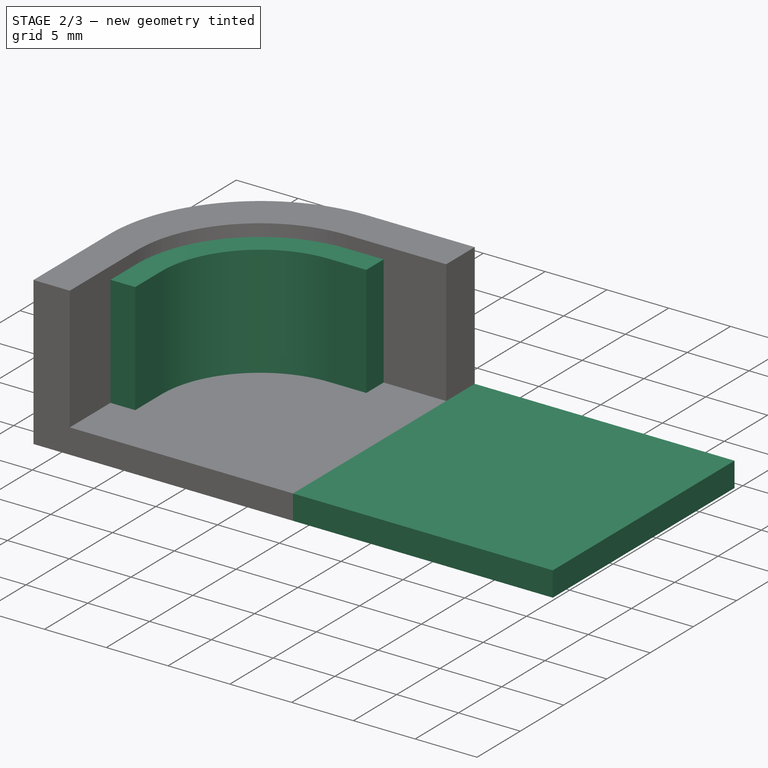
[diagram: stage 2 of 3 — iso view after this stage's code; geometry added in this stage tinted green]
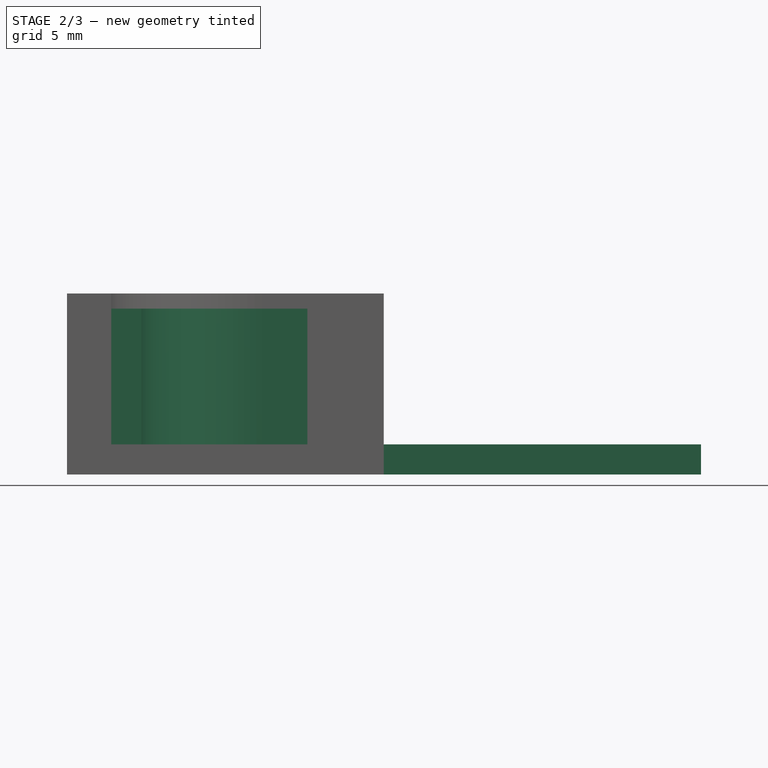
[diagram: stage 2 of 3 — front view after this stage's code; geometry added in this stage tinted green]
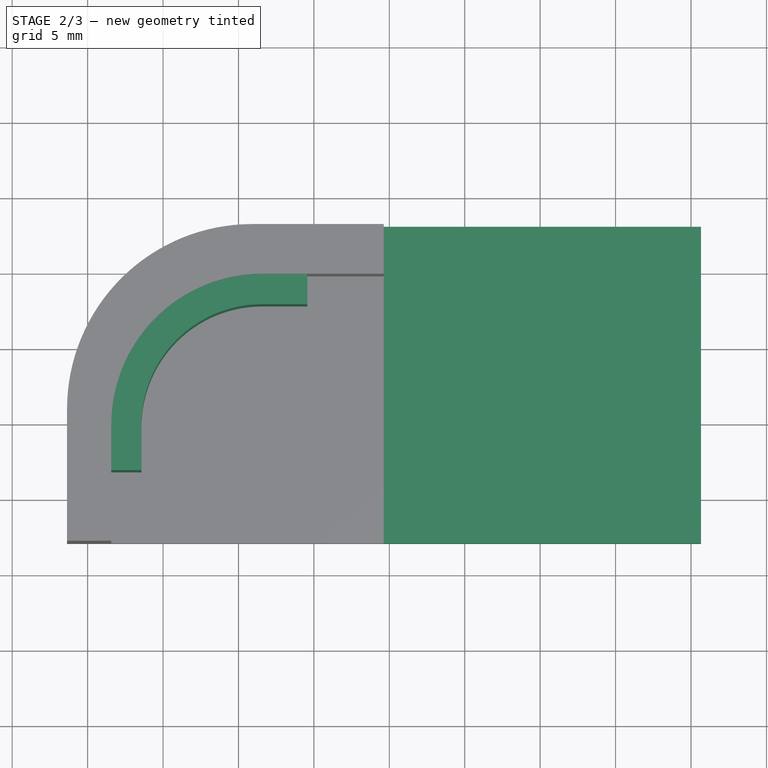
[diagram: stage 2 of 3 — top view after this stage's code; geometry added in this stage tinted green]
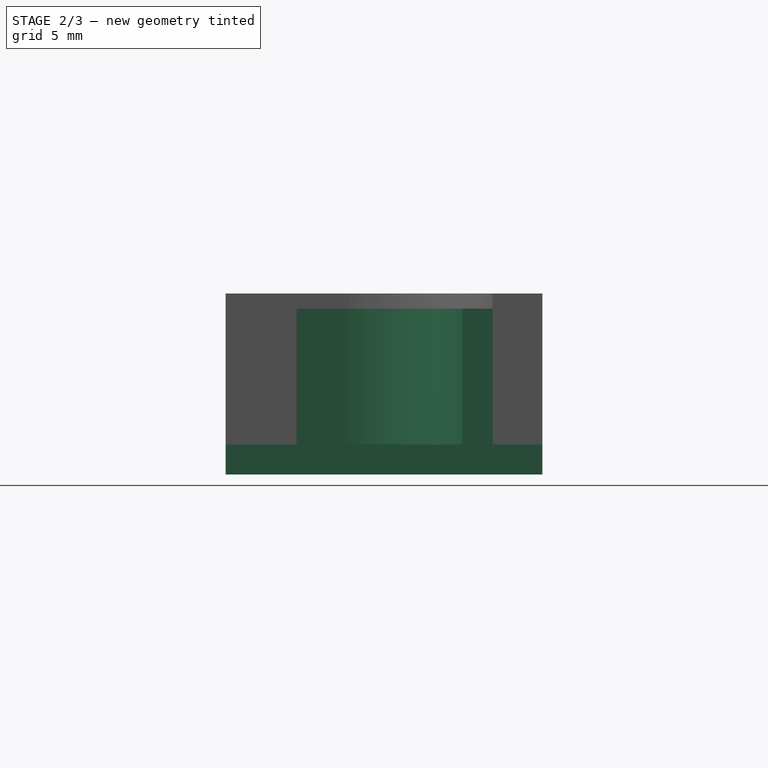
[diagram: stage 2 of 3 — right view after this stage's code; geometry added in this stage tinted green]
FEATURE [Sketcher::SketchObject] Sketch002
  ExternalGeometry = -> [ShapeBinder]
  FullyConstrained = true
  MapMode = 5
  Support = -> [XY_Plane004]
  sketch-geometry (10):
    g0: LineSegment StartX=89.5697 StartY=-30.1929 StartZ=0 EndX=86.5696 EndY=-30.1929 EndZ=0
    g1: LineSegment StartX=76.5697 StartY=-40.1929 StartZ=0 EndX=76.5697 EndY=-43.1929 EndZ=0
    g2: ArcOfCircle CenterX=86.5696 CenterY=-40.1929 CenterZ=0 NormalX=0 NormalY=0 NormalZ=1 AngleXU=0 Radius=9.99998 StartAngle=1.5708 EndAngle=3.14159
    g3: GeomPoint X=76.5697 Y=-30.1929 Z=0
    g4: LineSegment StartX=89.5697 StartY=-30.1929 StartZ=0 EndX=89.5697 EndY=-32.1929 EndZ=0
    g5: LineSegment StartX=89.5697 StartY=-32.1929 StartZ=0 EndX=86.5696 EndY=-32.1929 EndZ=0
    g6: LineSegment StartX=78.5697 StartY=-40.1929 StartZ=0 EndX=78.5697 EndY=-43.1929 EndZ=0
    g7: LineSegment StartX=78.5697 StartY=-43.1929 StartZ=0 EndX=76.5697 EndY=-43.1929 EndZ=0
    g8: ArcOfCircle CenterX=86.5696 CenterY=-40.1929 CenterZ=0 NormalX=0 NormalY=0 NormalZ=1 AngleXU=0 Radius=7.99998 StartAngle=1.5708 EndAngle=3.14159
    g9: GeomPoint X=78.5697 Y=-32.1929 Z=0
  constraints (24):
    c: Horizontal(g0)
    c: Vertical(g1)
    c: PointOnObject(g0,g-3)
    c: PointOnObject(g3,g0)
    c: PointOnObject(g3,g1)
    c: Tangent(g0,g2) = -1.5708
    c: Tangent(g1,g2) = -1.5708
    c: Coincident(g1,g-4)
    c: DistanceY(g1,g3) = 13
    c: DistanceX(g3,g0) = 13
    c: Coincident(g0,g4)
    c: Vertical(g4)
    c: Coincident(g4,g5)
    c: Horizontal(g5)
    c: Vertical(g6)
    c: Coincident(g6,g7)
    c: Coincident(g7,g1)
    c: Horizontal(g7)
    c: PointOnObject(g9,g5)
    c: PointOnObject(g9,g6)
    c: Tangent(g5,g8) = -1.5708
    c: Tangent(g6,g8) = -1.5708
    c: DistanceY(g4,g4) = 2
    c: Coincident(g2,g8)
FEATURE [PartDesign::Pad] Pad001
  BaseFeature = -> Pocket
  Direction = (0,0,1)
  Length = 11
  Length2 = 10
  Profile = -> Sketch002
  ReferenceAxis = -> Sketch002 [N_Axis]
  Type = 0
FEATURE [Sketcher::SketchObject] Sketch003
  ExternalGeometry = -> [Pad001]
  FullyConstrained = false
  MapMode = 5
  Support = -> [XY_Plane004]
  sketch-geometry (4):
    g0: ArcOfCircle CenterX=84.5794 CenterY=-36.8994 CenterZ=0 NormalX=0 NormalY=0 NormalZ=1 AngleXU=0 Radius=2.75 StartAngle=1.5708 EndAngle=4.71239
    g1: ArcOfCircle CenterX=110.341 CenterY=-36.8994 CenterZ=0 NormalX=0 NormalY=0 NormalZ=1 AngleXU=0 Radius=2.75 StartAngle=4.71239 EndAngle=7.85398
    g2: LineSegment StartX=84.5794 StartY=-39.6494 StartZ=0 EndX=110.341 EndY=-39.6494 EndZ=0
    g3: LineSegment StartX=110.341 StartY=-34.1494 StartZ=0 EndX=84.5794 EndY=-34.1494 EndZ=0
  constraints (8):
    c: Tangent(g0,g2) = -1.5708
    c: Tangent(g2,g1) = -1.5708
    c: Tangent(g1,g3) = -1.5708
    c: Tangent(g3,g0) = -1.5708
    c: Equal(g0,g1)
    c: Horizontal(g2)
    c: DistanceY(g1,g1) = 5.5
    c: DistanceY(g1,g-3) = 10
FEATURE [Sketcher::SketchObject] Sketch004
  ExternalGeometry = -> [Pad001]
  FullyConstrained = false
  MapMode = 5
  Support = -> [XY_Plane004]
  sketch-geometry (4):
    g0: LineSegment StartX=94.635 StartY=-26.8994 StartZ=0 EndX=115.66 EndY=-26.8994 EndZ=0
    g1: LineSegment StartX=115.66 StartY=-26.8994 StartZ=0 EndX=115.66 EndY=-47.8994 EndZ=0
    g2: LineSegment StartX=115.66 StartY=-47.8994 StartZ=0 EndX=94.635 EndY=-47.8994 EndZ=0
    g3: LineSegment StartX=94.635 StartY=-47.8994 StartZ=0 EndX=94.635 EndY=-26.8994 EndZ=0
  constraints (10):
    c: Coincident(g0,g1)
    c: Coincident(g1,g2)
    c: Coincident(g2,g3)
    c: Coincident(g3,g0)
    c: Horizontal(g0)
    c: Horizontal(g2)
    c: Vertical(g1)
    c: Vertical(g3)
    c: Coincident(g0,g-4)
    c: Horizontal(g-3,g2)
FEATURE [PartDesign::Pad] Pad002
  BaseFeature = -> Pad001
  Direction = (0,0,1)
  Length = 2
  Length2 = 10
  Profile = -> Sketch004
  ReferenceAxis = -> Sketch004 [N_Axis]
  Type = 0
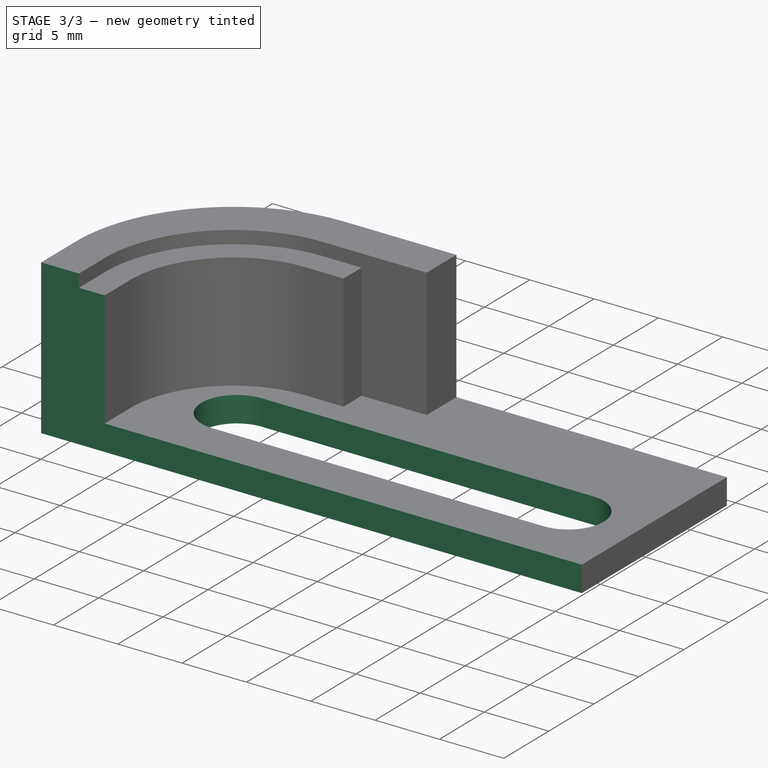
[diagram: stage 3 of 3 — iso view after this stage's code; geometry added in this stage tinted green]
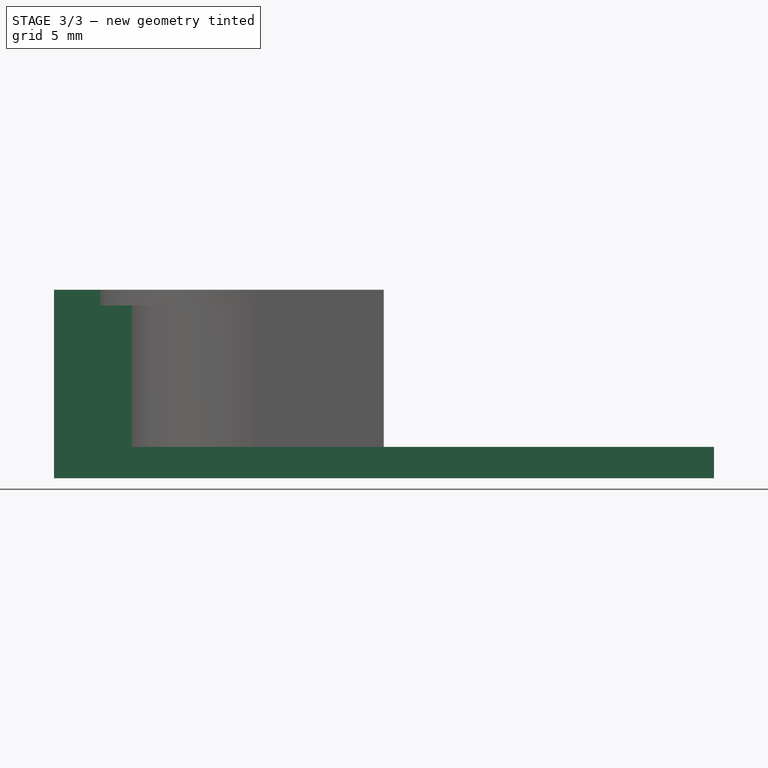
[diagram: stage 3 of 3 — front view after this stage's code; geometry added in this stage tinted green]
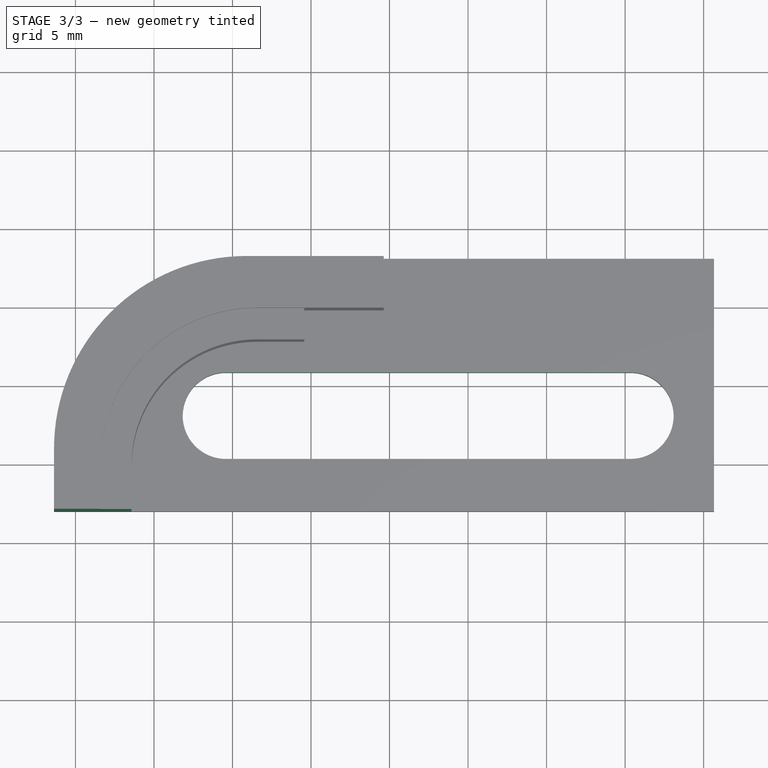
[diagram: stage 3 of 3 — top view after this stage's code; geometry added in this stage tinted green]
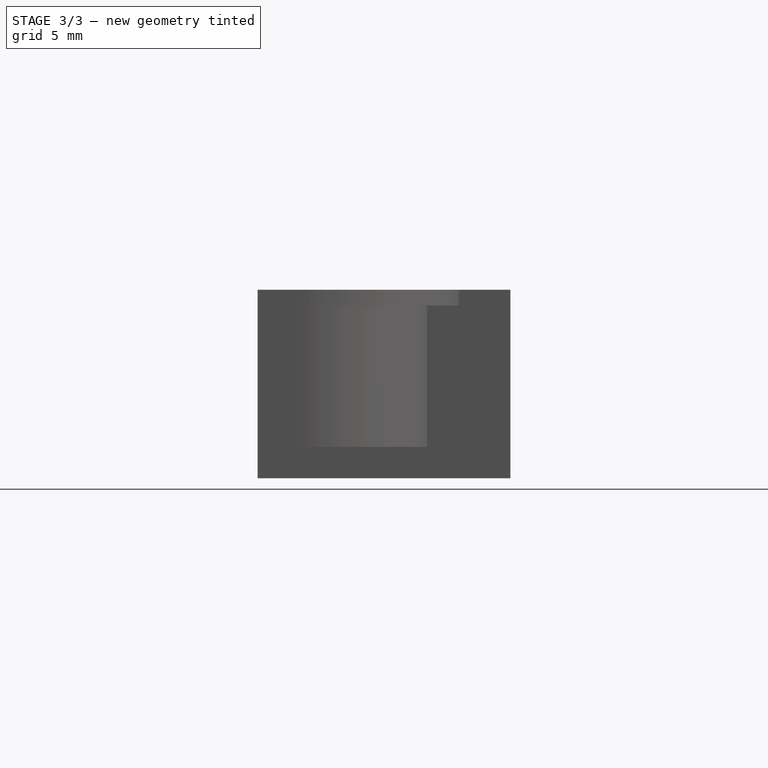
[diagram: stage 3 of 3 — right view after this stage's code; geometry added in this stage tinted green]
FEATURE [PartDesign::Pocket] Pocket001
  BaseFeature = -> Pad002
  Direction = (0,0,-1)
  Length = 5
  Length2 = 5
  Profile = -> Sketch003
  ReferenceAxis = -> Sketch003 [N_Axis]
  Reversed = true
  Type = 0
FEATURE [PartDesign::SubtractiveBox] Box
  AttacherType = Attacher::AttachEngine3D
  AttachmentOffset = pos=(73,-53,0) rot=(0,0,1;0rad)
  BaseFeature = -> Pocket001
  Height = 14
  Length = 46
  MapMode = 5
  Placement = pos=(73,-53,0) rot=(0,0,1;0rad)
  Support = -> [XY_Plane004]
  Width = 10
FEATURE [PartDesign::Body] Body
  Group = -> [ShapeBinder,Sketch001,Pad,Sketch,Pocket,Sketch002,Pad001,Sketch003,Sketch004,Pad002,Pocket001,Box]
  Origin = -> Origin004
  Tip = -> Box
FEATURE [App::Part] Part
  Group = -> [Body]
  Origin = -> Origin003
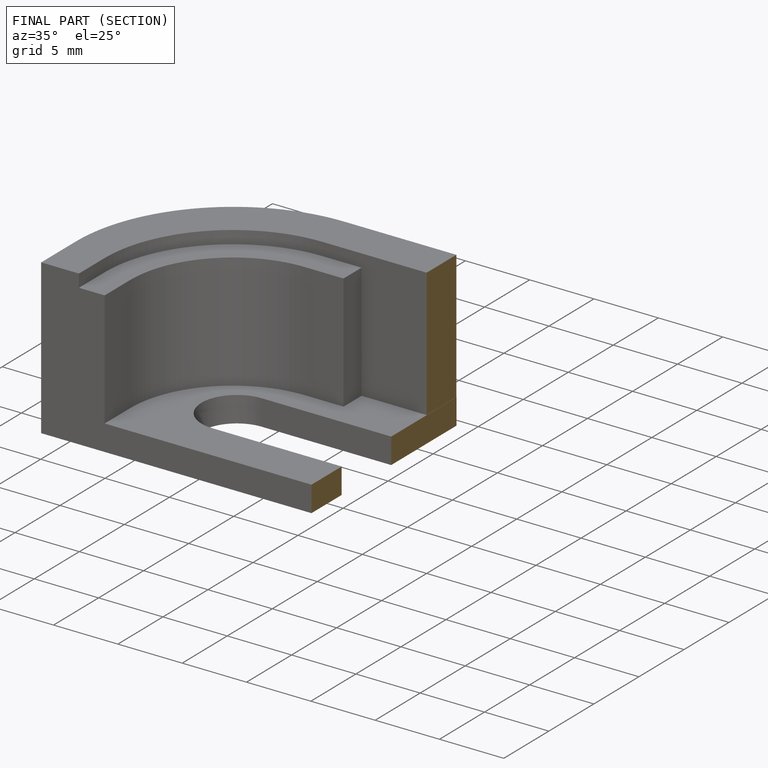
[diagram: finished part — half-section view (interior)]
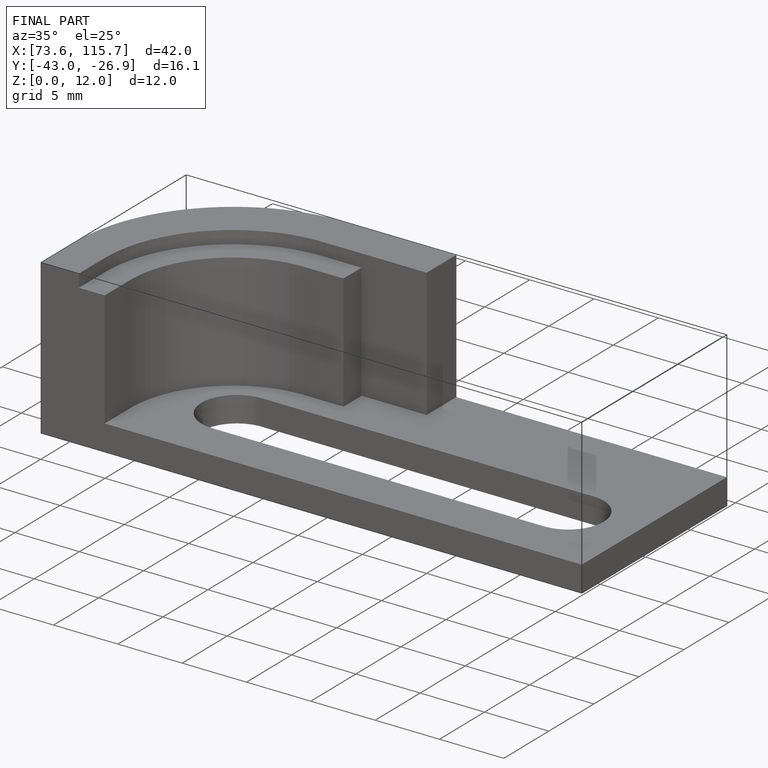
[diagram: finished part — iso view with bounding-box wireframe]
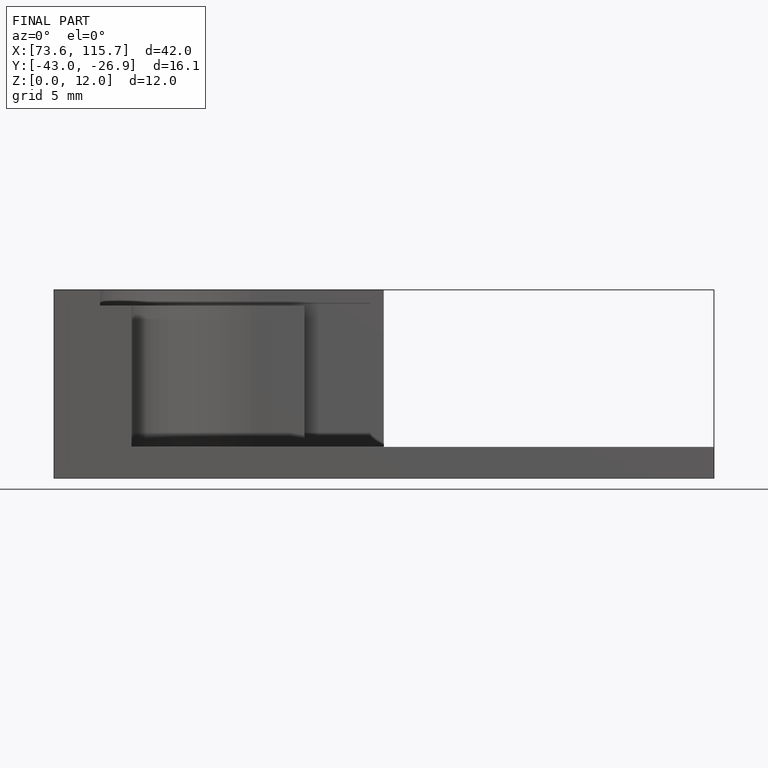
[diagram: finished part — front view with bounding-box wireframe]
